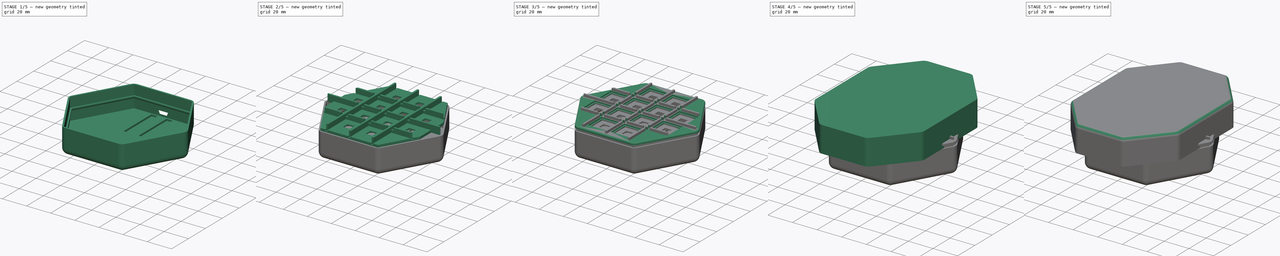
[diagram: build sequence overview — one tinted view per stage of 5, left to right]
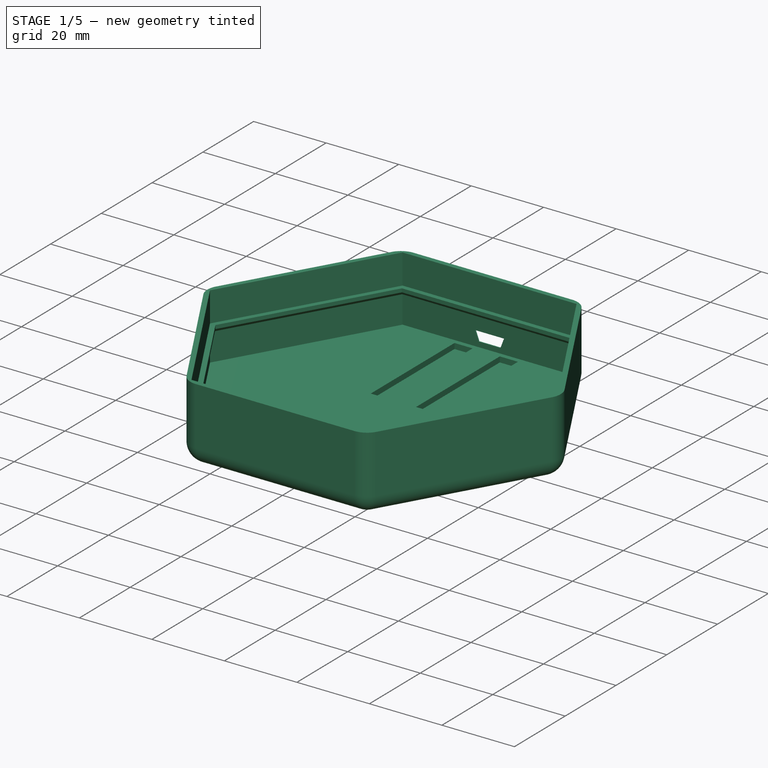
[diagram: stage 1 of 5 — iso view after this stage's code; geometry added in this stage tinted green]
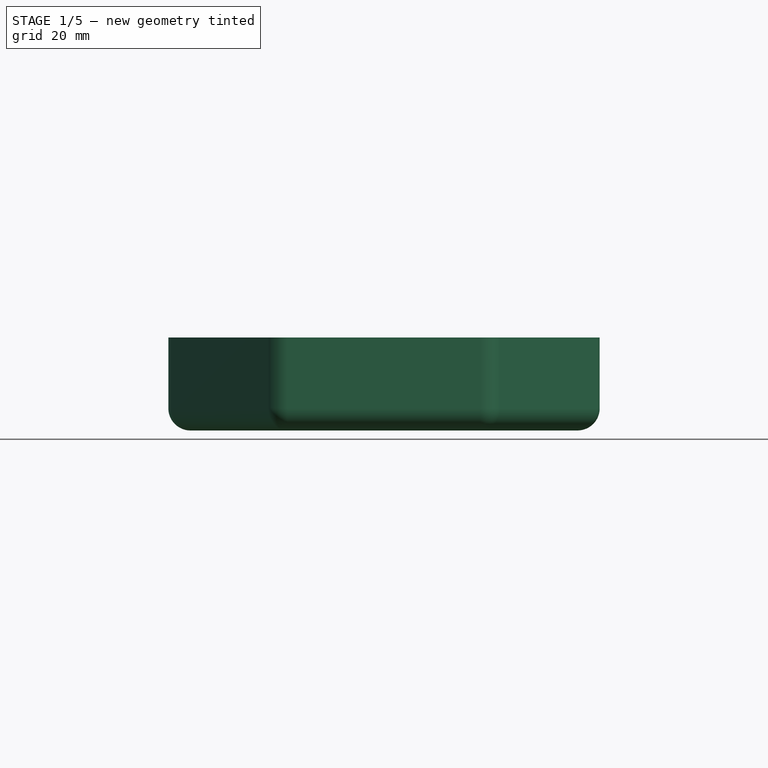
[diagram: stage 1 of 5 — front view after this stage's code; geometry added in this stage tinted green]
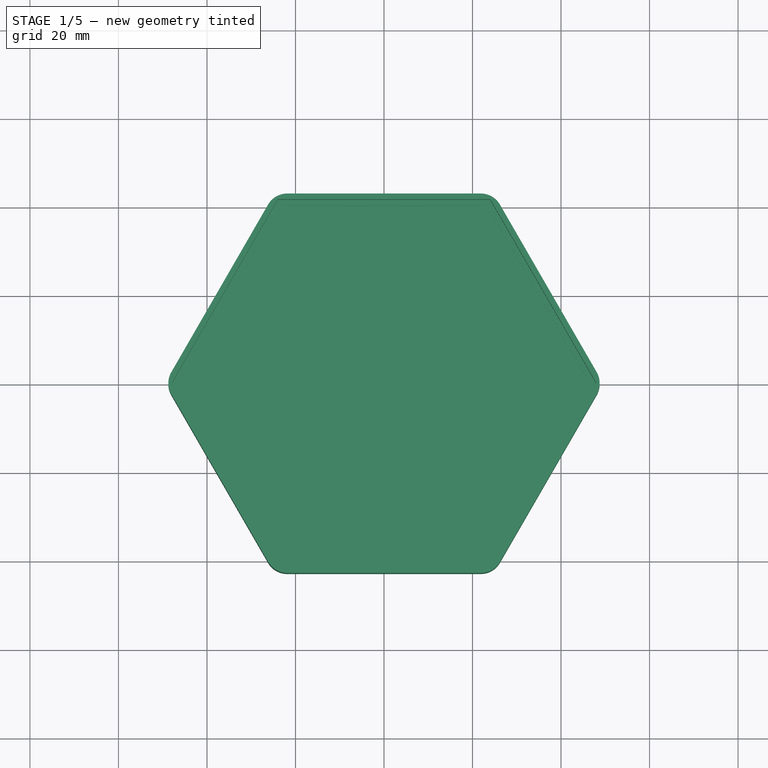
[diagram: stage 1 of 5 — top view after this stage's code; geometry added in this stage tinted green]
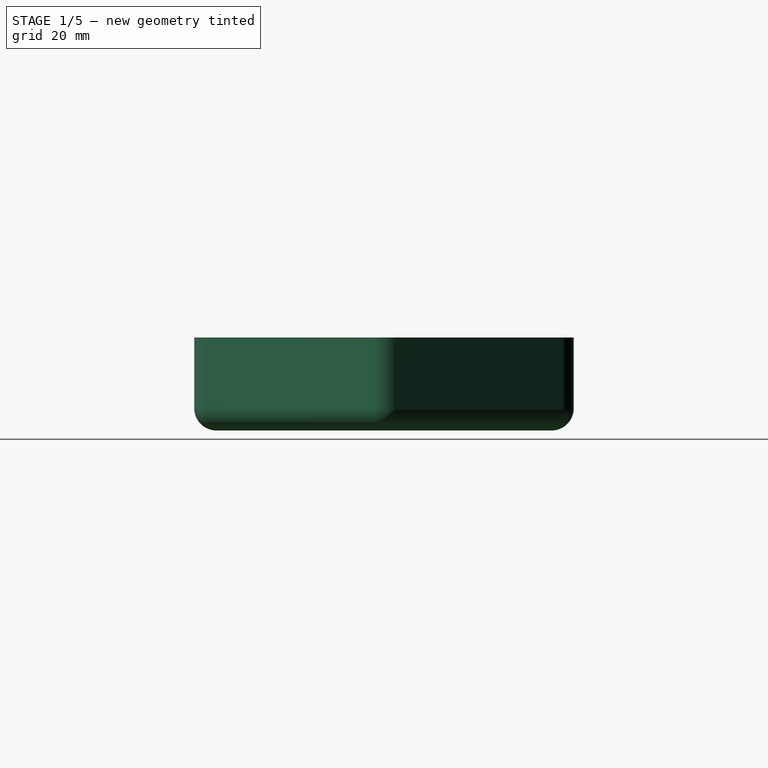
[diagram: stage 1 of 5 — right view after this stage's code; geometry added in this stage tinted green]
FCSTD DOCUMENT  (FreeCAD 0.19R22894 (Git))
Label: case
License: All rights reserved
LicenseURL: http://en.wikipedia.org/wiki/All_rights_reserved
objects: Sketcher::SketchObject×30, PartDesign::Pocket×21, PartDesign::Pad×8, PartDesign::Fillet×8, PartDesign::Body×6, PartDesign::Chamfer×3, PartDesign::Mirrored×2, PartDesign::PolarPattern×2, Spreadsheet::Sheet×1
note: 120 computed .brp shape members not serialized (recipe doc carries the construction recipe); baked Part::Feature solids carry a one-line shape summary decoded from their .brp

FEATURE [Sketcher::SketchObject] Sketch019
  MapMode = 5
  Support = -> [XY_Plane004]
  expr: Constraints[19] = (<<v>>.key_size + <<v>>.key_spacing + <<v>>.key_spacing) * 4 + <<v>>.plate_lip_width * 2
  sketch-geometry (7):
    g0: LineSegment StartX=24.75 StartY=-42.8683 StartZ=0 EndX=49.5 EndY=1.06581e-11 EndZ=0
    g1: LineSegment StartX=49.5 StartY=1.06581e-11 StartZ=0 EndX=24.75 EndY=42.8683 EndZ=0
    g2: LineSegment StartX=24.75 StartY=42.8683 StartZ=0 EndX=-24.75 EndY=42.8683 EndZ=0
    g3: LineSegment StartX=-24.75 StartY=42.8683 StartZ=0 EndX=-49.5 EndY=1.00258e-11 EndZ=0
    g4: LineSegment StartX=-49.5 StartY=1.00258e-11 StartZ=0 EndX=-24.75 EndY=-42.8683 EndZ=0
    g5: LineSegment StartX=-24.75 StartY=-42.8683 StartZ=0 EndX=24.75 EndY=-42.8683 EndZ=0
    g6: Circle [constr] CenterX=0 CenterY=0 CenterZ=0 NormalX=0 NormalY=0 NormalZ=1 AngleXU=0 Radius=49.5
  constraints (16):
    c: Coincident(g0,g1)
    c: Coincident(g1,g2)
    c: Coincident(g2,g3)
    c: Coincident(g3,g4)
    c: Coincident(g4,g5)
    c: Coincident(g5,g0)
    c: Equal(g0, g1-g5) x5
    c: PointOnObject(g0,g6)
    c: PointOnObject(g1,g6)
    c: PointOnObject(g2,g6)
    c: PointOnObject(g3,g6)
    c: PointOnObject(g4,g6)
    c: PointOnObject(g5,g6)
    c: Horizontal(g2)
    c: Coincident(g6,g-1)
    c: DistanceX(g3,g0) = 99
FEATURE [PartDesign::Pad] Pad005  label="0001 - base"
  AllowMultiFace = false
  Direction = (1,1,1)
  Length = 21
  Length2 = 100
  Profile = -> Sketch019
  Reversed = true
  Type = 0
  expr: Length = <<v>>.case_height
FEATURE [PartDesign::Fillet] Fillet006  label="0002 - fillet edges"
  Base = -> Pad005 [Edge2,Edge1,Edge5,Edge8,Edge11,Edge14]
  BaseFeature = -> Pad005
  Radius = 5
  SupportTransform = false
  expr: Radius = <<v>>.plate_fillet_radius
FEATURE [PartDesign::Fillet] Fillet007  label="0003 - fillet base"
  Base = -> Fillet006 [Face5]
  BaseFeature = -> Fillet006
  Radius = 5
  SupportTransform = false
FEATURE [Sketcher::SketchObject] Sketch020
  MapMode = 5
  Support = -> [Fillet007]
  expr: Constraints[19] = (<<v>>.key_size + <<v>>.key_spacing + <<v>>.key_spacing) * 4
  sketch-geometry (7):
    g0: LineSegment StartX=24 StartY=-41.5692 StartZ=0 EndX=48 EndY=4.974e-13 EndZ=0
    g1: LineSegment StartX=48 StartY=4.974e-13 StartZ=0 EndX=24 EndY=41.5692 EndZ=0
    g2: LineSegment StartX=24 StartY=41.5692 StartZ=0 EndX=-24 EndY=41.5692 EndZ=0
    g3: LineSegment StartX=-24 StartY=41.5692 StartZ=0 EndX=-48 EndY=9.592e-13 EndZ=0
    g4: LineSegment StartX=-48 StartY=9.592e-13 StartZ=0 EndX=-24 EndY=-41.5692 EndZ=0
    g5: LineSegment StartX=-24 StartY=-41.5692 StartZ=0 EndX=24 EndY=-41.5692 EndZ=0
    g6: Circle [constr] CenterX=0 CenterY=0 CenterZ=0 NormalX=0 NormalY=0 NormalZ=1 AngleXU=0 Radius=48
  constraints (16):
    c: Coincident(g0,g1)
    c: Coincident(g1,g2)
    c: Coincident(g2,g3)
    c: Coincident(g3,g4)
    c: Coincident(g4,g5)
    c: Coincident(g5,g0)
    c: Equal(g0, g1-g5) x5
    c: PointOnObject(g0,g6)
    c: PointOnObject(g1,g6)
    c: PointOnObject(g2,g6)
    c: PointOnObject(g3,g6)
    c: PointOnObject(g4,g6)
    c: PointOnObject(g5,g6)
    c: Horizontal(g2)
    c: Coincident(g6,g-1)
    c: DistanceX(g3,g0) = 96
FEATURE [PartDesign::Pocket] Pocket013  label="0004 - pocket inner channel"
  AllowMultiFace = false
  BaseFeature = -> Fillet007
  Length = 18
  Length2 = 100
  Profile = -> Sketch020
  Type = 0
  expr: Length = <<v>>.case_pocket_depth
FEATURE [PartDesign::Body] Body003  label="Light Shelf"
  Group = -> [Sketch014,Sketch015,Pad004,Pocket009,Sketch016,Pocket010,PolarPattern001,Sketch017,Pocket011,Sketch018,Pocket012,Sketch026,Pocket018]
  Origin = -> Origin003
  Placement = pos=(0,0,-8) rot=(0,0,1;0rad)
  Tip = -> Pocket018
FEATURE [Sketcher::SketchObject] Sketch027
  MapMode = 5
  Placement = pos=(0,41.5692,0) rot=(1,0,0;1.5708rad)
  Support = -> [Pocket013]
  expr: Constraints[20] = <<v>>.case_pocket_depth - 4
  sketch-geometry (7):
    g0: LineSegment StartX=-4 StartY=-14 StartZ=0 EndX=-3 EndY=-16.6 EndZ=0
    g1: LineSegment StartX=-3 StartY=-16.6 StartZ=0 EndX=3 EndY=-16.6 EndZ=0
    g2: LineSegment StartX=3 StartY=-16.6 StartZ=0 EndX=4 EndY=-14 EndZ=0
    g3: LineSegment StartX=4 StartY=-14 StartZ=0 EndX=-4 EndY=-14 EndZ=0
    g4: LineSegment [constr] StartX=-4 StartY=-14 StartZ=0 EndX=0 EndY=-15.6 EndZ=0
    g5: LineSegment [constr] StartX=0 StartY=-15.6 StartZ=0 EndX=4 EndY=-14 EndZ=0
    g6: LineSegment [constr] StartX=0 StartY=-15.6 StartZ=0 EndX=0 EndY=-16.6 EndZ=0
  constraints (21):
    c: Coincident(g1,g0)
    c: Horizontal(g1)
    c: Coincident(g2,g1)
    c: Coincident(g3,g2)
    c: Coincident(g3,g0)
    c: Equal(g0,g2)
    c: DistanceX(g3,g3) = 8
    c: DistanceX(g1,g1) = 6
    c: DistanceY(g0,g0) = 2.6
    c: Coincident(g4,g0)
    c: Coincident(g5,g4)
    c: Coincident(g5,g2)
    c: PointOnObject(g4,g-2)
    c: Equal(g5,g4)
    c: Coincident(g6,g4)
    c: PointOnObject(g6,g1)
    c: Vertical(g6)
    c: DistanceY(g6,g6) = 1
    c: Equal(g2,g0)
    c: Horizontal(g3)
    c: DistanceY(g2,g-1) = 14
FEATURE [PartDesign::Pocket] Pocket019  label="0005 - cutout microusb"
  BaseFeature = -> Pocket013
  Length = 5
  Length2 = 100
  Profile = -> Sketch027
  Type = 1
FEATURE [PartDesign::Chamfer] Chamfer001  label="0006 - chamfer usb port"
  Angle = 45
  Base = -> Pocket019 [Edge80,Edge52,Edge51,Edge50,Edge81,Edge79]
  BaseFeature = -> Pocket019
  ChamferType = 0
  FlipDirection = false
  Size = 1
  Size2 = 1
  SupportTransform = false
FEATURE [Sketcher::SketchObject] Sketch028
  AttachmentOffset = pos=(0,0,7.75) rot=(0,0,1;0rad)
  MapMode = 5
  Placement = pos=(0,0,-10.25) rot=(0,0,1;0rad)
  Support = -> [Chamfer001]
  expr: Constraints[19] = (<<v>>.key_size + <<v>>.key_spacing + <<v>>.key_spacing) * 4 + <<v>>.plate_lip_width * 2 - 2
  sketch-geometry (14):
    g0: LineSegment StartX=24.25 StartY=-42.0022 StartZ=0 EndX=48.5 EndY=7.1e-15 EndZ=0
    g1: LineSegment StartX=48.5 StartY=7.1e-15 StartZ=0 EndX=24.25 EndY=42.0022 EndZ=0
    g2: LineSegment StartX=24.25 StartY=42.0022 StartZ=0 EndX=-24.25 EndY=42.0022 EndZ=0
    g3: LineSegment StartX=-24.25 StartY=42.0022 StartZ=0 EndX=-48.5 EndY=0 EndZ=0
    g4: LineSegment StartX=-48.5 StartY=0 StartZ=0 EndX=-24.25 EndY=-42.0022 EndZ=0
    g5: LineSegment StartX=-24.25 StartY=-42.0022 StartZ=0 EndX=24.25 EndY=-42.0022 EndZ=0
    g6: Circle [constr] CenterX=0 CenterY=0 CenterZ=0 NormalX=0 NormalY=0 NormalZ=1 AngleXU=0 Radius=48.5
    g7: LineSegment StartX=46.5 StartY=0 StartZ=0 EndX=23.25 EndY=40.2702 EndZ=0
    g8: LineSegment StartX=23.25 StartY=40.2702 StartZ=0 EndX=-23.25 EndY=40.2702 EndZ=0
    g9: LineSegment StartX=-23.25 StartY=40.2702 StartZ=0 EndX=-46.5 EndY=0 EndZ=0
    g10: LineSegment StartX=-46.5 StartY=0 StartZ=0 EndX=-23.25 EndY=-40.2702 EndZ=0
    g11: LineSegment StartX=-23.25 StartY=-40.2702 StartZ=0 EndX=23.25 EndY=-40.2702 EndZ=0
    g12: LineSegment StartX=23.25 StartY=-40.2702 StartZ=0 EndX=46.5 EndY=0 EndZ=0
    g13: Circle [constr] CenterX=0 CenterY=0 CenterZ=0 NormalX=0 NormalY=0 NormalZ=1 AngleXU=0 Radius=46.5
  constraints (32):
    c: Coincident(g0,g1)
    c: Coincident(g1,g2)
    c: Coincident(g2,g3)
    c: Coincident(g3,g4)
    c: Coincident(g4,g5)
    c: Coincident(g5,g0)
    c: Equal(g0, g1-g5) x5
    c: PointOnObject(g0,g6)
    c: PointOnObject(g1,g6)
    c: PointOnObject(g2,g6)
    c: PointOnObject(g3,g6)
    c: PointOnObject(g4,g6)
    c: PointOnObject(g5,g6)
    c: Coincident(g6,g-1)
    c: Horizontal(g2)
    c: DistanceX(g3,g0) = 97
    c: Coincident(g7,g8)
    c: Coincident(g8,g9)
    c: Coincident(g9,g10)
    c: Coincident(g10,g11)
    c: Coincident(g11,g12)
    c: Coincident(g12,g7)
    c: Equal(g7, g8-g12) x5
    c: PointOnObject(g7,g13)
    c: PointOnObject(g8,g13)
    c: PointOnObject(g9,g13)
    c: PointOnObject(g10,g13)
    c: PointOnObject(g11,g13)
    c: PointOnObject(g12,g13)
    c: PointOnObject(g12,g-1)
    c: Coincident(g13,g-1)
    c: Distance(g8,g2) = 2
FEATURE [PartDesign::Pad] Pad007  label="0007 - lip"
  BaseFeature = -> Chamfer001
  Direction = (1,1,1)
  Length = 2
  Length2 = 100
  Profile = -> Sketch028
  Type = 0
FEATURE [PartDesign::Chamfer] Chamfer002  label="0008 - chamfer lip"
  Angle = 45
  Base = -> Pad007 [Edge127,Edge128,Edge125,Edge123,Edge124,Edge126]
  BaseFeature = -> Pad007
  ChamferType = 0
  FlipDirection = false
  Size = 1
  Size2 = 1
  SupportTransform = false
FEATURE [Sketcher::SketchObject] Sketch029
  ExternalGeometry = -> [Chamfer002]
  MapMode = 5
  Placement = pos=(0,0,-18) rot=(0,0,1;0rad)
  Support = -> [Chamfer002]
  sketch-geometry (10):
    g0: LineSegment StartX=-8.75 StartY=40.2702 StartZ=0 EndX=-3.75 EndY=40.2702 EndZ=0
    g1: LineSegment StartX=-3.75 StartY=40.2702 StartZ=0 EndX=-3.75 EndY=7.27018 EndZ=0
    g2: LineSegment StartX=-3.75 StartY=7.27018 StartZ=0 EndX=-8.75 EndY=7.27018 EndZ=0
    g3: LineSegment StartX=-8.75 StartY=7.27018 StartZ=0 EndX=-8.75 EndY=40.2702 EndZ=0
    g4: LineSegment StartX=3.75 StartY=40.2702 StartZ=0 EndX=8.75 EndY=40.2702 EndZ=0
    g5: LineSegment StartX=8.75 StartY=40.2702 StartZ=0 EndX=8.75 EndY=7.27018 EndZ=0
    g6: LineSegment StartX=8.75 StartY=7.27018 StartZ=0 EndX=3.75 EndY=7.27018 EndZ=0
    g7: LineSegment StartX=3.75 StartY=7.27018 StartZ=0 EndX=3.75 EndY=40.2702 EndZ=0
    g8: LineSegment [constr] StartX=-3.75 StartY=7.27018 StartZ=0 EndX=0 EndY=7.27018 EndZ=0
    g9: LineSegment [constr] StartX=3.75 StartY=7.27018 StartZ=0 EndX=0 EndY=7.27018 EndZ=0
  constraints (30):
    c: Coincident(g0,g1)
    c: Coincident(g1,g2)
    c: Coincident(g2,g3)
    c: Coincident(g3,g0)
    c: Horizontal(g0)
    c: Horizontal(g2)
    c: Vertical(g1)
    c: Vertical(g3)
    c: Coincident(g4,g5)
    c: Coincident(g5,g6)
    c: Coincident(g6,g7)
    c: Coincident(g7,g4)
    c: Horizontal(g4)
    c: Horizontal(g6)
    c: Vertical(g5)
    c: Vertical(g7)
    c: Equal(g0,g4)
    c: DistanceX(g4,g4) = 5
    c: PointOnObject(g0,g-3)
    c: PointOnObject(g4,g-3)
    c: DistanceX(g1,g6) = 7.5
    c: Equal(g5,g3)
    c: Coincident(g8,g1)
    c: PointOnObject(g8,g-2)
    c: Horizontal(g8)
    c: Coincident(g9,g6)
    c: Coincident(g9,g8)
    c: Equal(g9,g8)
    c: Equal(g3,g5)
    c: DistanceY(g3,g3) = 33
FEATURE [PartDesign::Pocket] Pocket020
  BaseFeature = -> Chamfer002
  Length = 1.5
  Length2 = 100
  Profile = -> Sketch029
  Type = 0
FEATURE [PartDesign::Body] Body004  label="Case"
  Group = -> [Sketch019,Pad005,Fillet006,Fillet007,Sketch020,Pocket013,Sketch027,Pocket019,Chamfer001,Sketch028,Pad007,Chamfer002,Sketch029,Pocket020]
  Origin = -> Origin004
  Tip = -> Pocket020
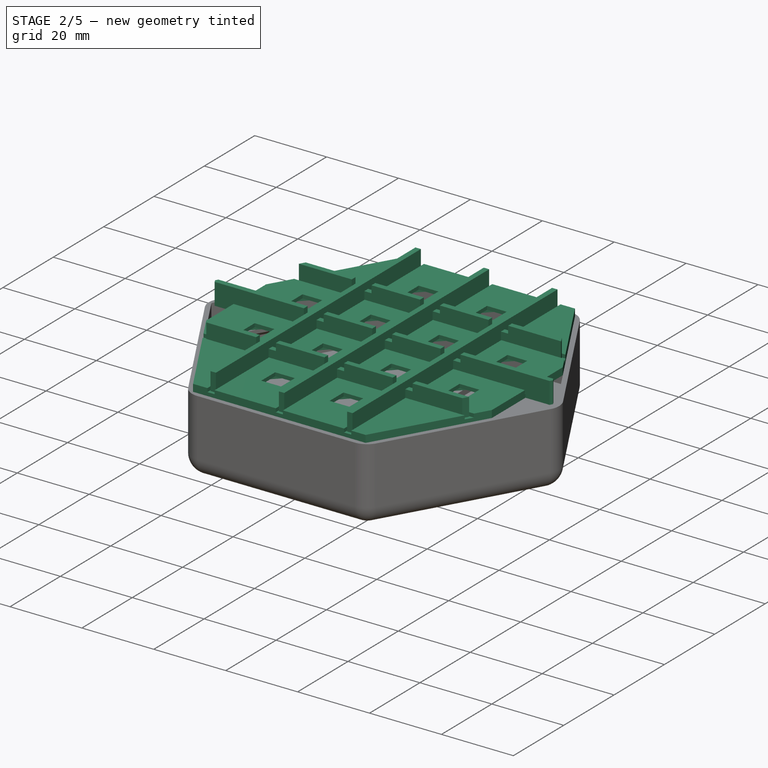
[diagram: stage 2 of 5 — iso view after this stage's code; geometry added in this stage tinted green]
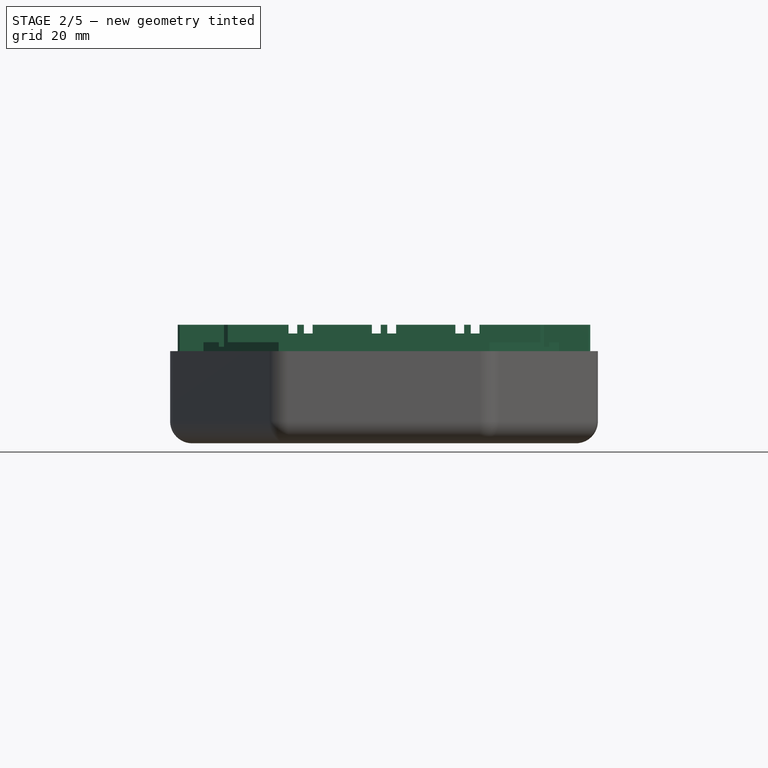
[diagram: stage 2 of 5 — front view after this stage's code; geometry added in this stage tinted green]
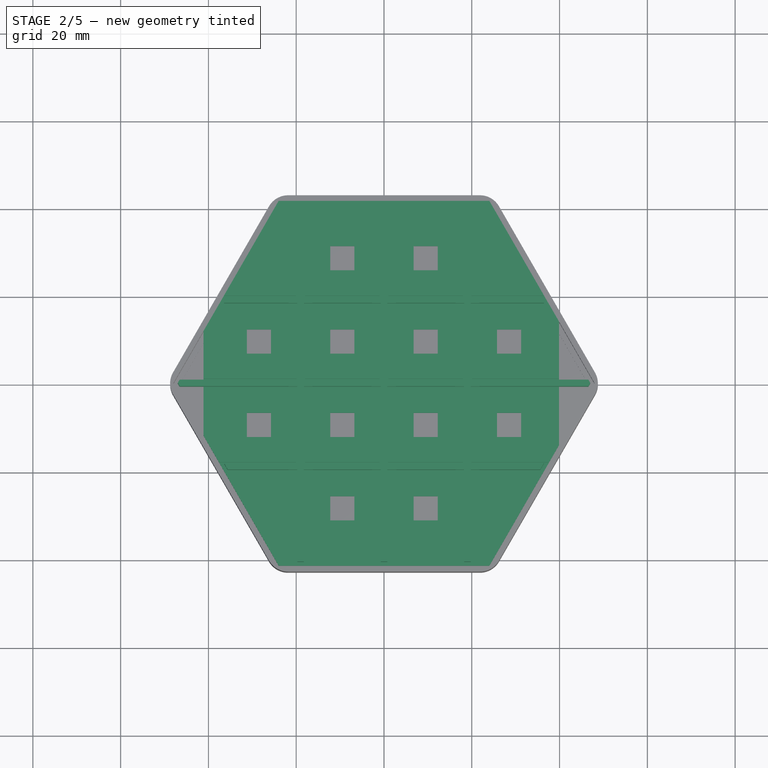
[diagram: stage 2 of 5 — top view after this stage's code; geometry added in this stage tinted green]
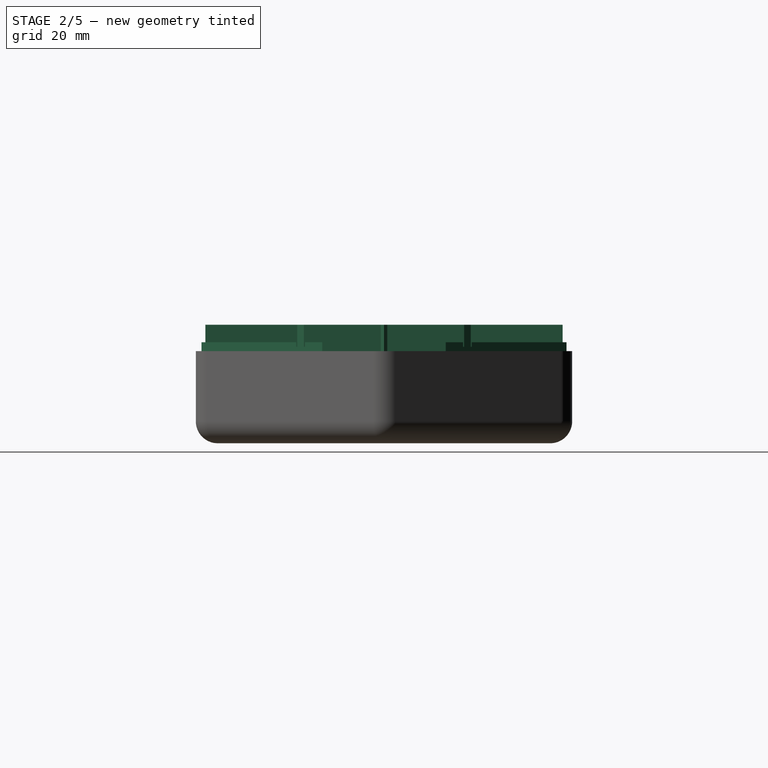
[diagram: stage 2 of 5 — right view after this stage's code; geometry added in this stage tinted green]
FEATURE [Sketcher::SketchObject] Sketch015
  MapMode = 5
  Support = -> [XY_Plane003]
  expr: Constraints[18] = (<<v>>.key_size + <<v>>.key_spacing + <<v>>.key_spacing) * 4
  sketch-geometry (7):
    g0: LineSegment StartX=24 StartY=-41.5692 StartZ=0 EndX=48 EndY=0 EndZ=0
    g1: LineSegment StartX=48 StartY=0 StartZ=0 EndX=24 EndY=41.5692 EndZ=0
    g2: LineSegment StartX=24 StartY=41.5692 StartZ=0 EndX=-24 EndY=41.5692 EndZ=0
    g3: LineSegment StartX=-24 StartY=41.5692 StartZ=0 EndX=-48 EndY=0 EndZ=0
    g4: LineSegment StartX=-48 StartY=0 StartZ=0 EndX=-24 EndY=-41.5692 EndZ=0
    g5: LineSegment StartX=-24 StartY=-41.5692 StartZ=0 EndX=24 EndY=-41.5692 EndZ=0
    g6: Circle [constr] CenterX=0 CenterY=0 CenterZ=0 NormalX=0 NormalY=0 NormalZ=1 AngleXU=0 Radius=48
  constraints (16):
    c: Coincident(g0,g1)
    c: Coincident(g1,g2)
    c: Coincident(g2,g3)
    c: Coincident(g3,g4)
    c: Coincident(g4,g5)
    c: Coincident(g5,g0)
    c: Equal(g0, g1-g5) x5
    c: PointOnObject(g0,g6)
    c: PointOnObject(g1,g6)
    c: PointOnObject(g2,g6)
    c: PointOnObject(g3,g6)
    c: PointOnObject(g4,g6)
    c: PointOnObject(g5,g6)
    c: Horizontal(g2)
    c: DistanceX(g3,g0) = 96
    c: Coincident(g6,g-1)
FEATURE [PartDesign::Pad] Pad004  label="0001 - pad base"
  AllowMultiFace = false
  Direction = (1,1,1)
  Length = 2
  Length2 = 100
  Profile = -> Sketch015
  Type = 0
  expr: Length = <<v>>.led_height + <<v>>.led_plate_height
FEATURE [Sketcher::SketchObject] Sketch014
  MapMode = 5
  Placement = pos=(0,0,2) rot=(0,0,1;0rad)
  Support = -> [Pad004]
  expr: Constraints[29] = <<v>>.led_size
  expr: Constraints[53] = <<v>>.center_to_center_spacing
  expr: Constraints[54] = <<v>>.center_to_center_spacing
  expr: Constraints[55] = <<v>>.center_to_center_spacing / 2
  expr: Constraints[56] = <<v>>.center_to_center_spacing / 2
  sketch-geometry (21):
    g0: LineSegment StartX=-12.25 StartY=12.25 StartZ=0 EndX=-6.75 EndY=12.25 EndZ=0
    g1: LineSegment StartX=-6.75 StartY=12.25 StartZ=0 EndX=-6.75 EndY=6.75 EndZ=0
    g2: LineSegment StartX=-6.75 StartY=6.75 StartZ=0 EndX=-12.25 EndY=6.75 EndZ=0
    g3: LineSegment StartX=-12.25 StartY=6.75 StartZ=0 EndX=-12.25 EndY=12.25 EndZ=0
    g4: LineSegment StartX=-31.25 StartY=12.25 StartZ=0 EndX=-25.75 EndY=12.25 EndZ=0
    g5: LineSegment StartX=-25.75 StartY=12.25 StartZ=0 EndX=-25.75 EndY=6.75 EndZ=0
    g6: LineSegment StartX=-25.75 StartY=6.75 StartZ=0 EndX=-31.25 EndY=6.75 EndZ=0
    g7: LineSegment StartX=-31.25 StartY=6.75 StartZ=0 EndX=-31.25 EndY=12.25 EndZ=0
    g8: LineSegment StartX=-12.25 StartY=25.75 StartZ=0 EndX=-6.75 EndY=25.75 EndZ=0
    g9: LineSegment StartX=-6.75 StartY=25.75 StartZ=0 EndX=-6.75 EndY=31.25 EndZ=0
    g10: LineSegment StartX=-6.75 StartY=31.25 StartZ=0 EndX=-12.25 EndY=31.25 EndZ=0
    g11: LineSegment StartX=-12.25 StartY=31.25 StartZ=0 EndX=-12.25 EndY=25.75 EndZ=0
    g12: LineSegment [constr] StartX=-12.25 StartY=25.75 StartZ=0 EndX=-9.5 EndY=28.5 EndZ=0
    g13: LineSegment [constr] StartX=-9.5 StartY=28.5 StartZ=0 EndX=-6.75 EndY=25.75 EndZ=0
    g14: LineSegment [constr] StartX=-9.5 StartY=28.5 StartZ=0 EndX=-12.25 EndY=31.25 EndZ=0
    g15: LineSegment [constr] StartX=-6.75 StartY=12.25 StartZ=0 EndX=-9.5 EndY=9.5 EndZ=0
    g16: LineSegment [constr] StartX=-9.5 StartY=9.5 StartZ=0 EndX=-12.25 EndY=12.25 EndZ=0
    g17: LineSegment [constr] StartX=-9.5 StartY=9.5 StartZ=0 EndX=-6.75 EndY=6.75 EndZ=0
    g18: LineSegment [constr] StartX=-28.5 StartY=9.5 StartZ=0 EndX=-31.25 EndY=12.25 EndZ=0
    g19: LineSegment [constr] StartX=-28.5 StartY=9.5 StartZ=0 EndX=-25.75 EndY=12.25 EndZ=0
    g20: LineSegment [constr] StartX=-28.5 StartY=9.5 StartZ=0 EndX=-25.75 EndY=6.75 EndZ=0
  constraints (57):
    c: Coincident(g0,g1)
    c: Coincident(g1,g2)
    c: Coincident(g2,g3)
    c: Coincident(g3,g0)
    c: Horizontal(g0)
    c: Horizontal(g2)
    c: Vertical(g1)
    c: Vertical(g3)
    c: Coincident(g4,g5)
    c: Coincident(g5,g6)
    c: Coincident(g6,g7)
    c: Coincident(g7,g4)
    c: Horizontal(g4)
    c: Horizontal(g6)
    c: Vertical(g5)
    c: Vertical(g7)
    c: Coincident(g8,g9)
    c: Coincident(g9,g10)
    c: Coincident(g10,g11)
    c: Coincident(g11,g8)
    c: Horizontal(g8)
    c: Horizontal(g10)
    c: Vertical(g9)
    c: Vertical(g11)
    c: Equal(g10,g11)
    c: Equal(g11,g0)
    c: Equal(g0,g3)
    c: Equal(g3,g5)
    c: Equal(g5,g4)
    c: DistanceX(g8,g8) = 5.5
    c: Vertical(g0,g9)
    c: Horizontal(g0,g4)
    c: Coincident(g20,g19)
    c: Coincident(g20,g18)
    c: Coincident(g14,g12)
    c: Coincident(g14,g13)
    c: Coincident(g17,g16)
    c: Coincident(g17,g15)
    c: Coincident(g18,g4)
    c: Coincident(g19,g4)
    c: Coincident(g5,g20)
    c: Equal(g18,g19)
    c: Equal(g19,g20)
    c: Coincident(g13,g8)
    c: Coincident(g12,g8)
    c: Coincident(g14,g10)
    c: Equal(g14,g12)
    c: Equal(g12,g13)
    c: Coincident(g17,g1)
    c: Coincident(g15,g0)
    c: Coincident(g16,g0)
    c: Equal(g15,g16)
    c: Equal(g16,g17)
    c: DistanceY(g15,g12) = 19
    c: DistanceX(g18,g15) = 19
    c: DistanceX(g15,g-1) = 9.5
    c: DistanceY(g-1,g15) = 9.5
FEATURE [PartDesign::Pocket] Pocket009  label="0002 - cut holes (1/4)"
  AllowMultiFace = false
  BaseFeature = -> Pad004
  Length = 5
  Length2 = 100
  Profile = -> Sketch014
  Type = 1
FEATURE [Sketcher::SketchObject] Sketch016
  MapMode = 5
  Placement = pos=(0,0,0) rot=(1,0,0;3.14159rad)
  Support = -> [Pocket009]
  expr: Constraints[73] = <<v>>.center_to_center_spacing
  expr: Constraints[75] = <<v>>.center_to_center_spacing
  expr: Constraints[76] = <<v>>.center_to_center_spacing / 2
  expr: Constraints[77] = <<v>>.center_to_center_spacing / 2
  expr: Constraints[78] = <<v>>.led_plate_diameter / 2
  sketch-geometry (27):
    g0: LineSegment StartX=-26.5866 StartY=-14.1194 StartZ=0 EndX=-23.8806 EndY=-11.4134 EndZ=0
    g1: LineSegment StartX=-23.8806 StartY=-11.4134 StartZ=0 EndX=-23.8806 EndY=-7.58658 EndZ=0
    g2: LineSegment StartX=-23.8806 StartY=-7.58658 StartZ=0 EndX=-26.5866 EndY=-4.8806 EndZ=0
    g3: LineSegment StartX=-26.5866 StartY=-4.8806 StartZ=0 EndX=-30.4134 EndY=-4.8806 EndZ=0
    g4: LineSegment StartX=-30.4134 StartY=-4.8806 StartZ=0 EndX=-33.1194 EndY=-7.58658 EndZ=0
    g5: LineSegment StartX=-33.1194 StartY=-7.58658 StartZ=0 EndX=-33.1194 EndY=-11.4134 EndZ=0
    g6: LineSegment StartX=-33.1194 StartY=-11.4134 StartZ=0 EndX=-30.4134 EndY=-14.1194 EndZ=0
    g7: LineSegment StartX=-30.4134 StartY=-14.1194 StartZ=0 EndX=-26.5866 EndY=-14.1194 EndZ=0
    g8: Circle [constr] CenterX=-28.5 CenterY=-9.5 CenterZ=0 NormalX=0 NormalY=0 NormalZ=1 AngleXU=0 Radius=5
    g9: LineSegment StartX=-4.8806 StartY=-11.4134 StartZ=0 EndX=-4.8806 EndY=-7.58658 EndZ=0
    g10: LineSegment StartX=-4.8806 StartY=-7.58658 StartZ=0 EndX=-7.58658 EndY=-4.8806 EndZ=0
    g11: LineSegment StartX=-7.58658 StartY=-4.8806 StartZ=0 EndX=-11.4134 EndY=-4.8806 EndZ=0
    g12: LineSegment StartX=-11.4134 StartY=-4.8806 StartZ=0 EndX=-14.1194 EndY=-7.58658 EndZ=0
    g13: LineSegment StartX=-14.1194 StartY=-7.58658 StartZ=0 EndX=-14.1194 EndY=-11.4134 EndZ=0
    g14: LineSegment StartX=-14.1194 StartY=-11.4134 StartZ=0 EndX=-11.4134 EndY=-14.1194 EndZ=0
    g15: LineSegment StartX=-11.4134 StartY=-14.1194 StartZ=0 EndX=-7.58658 EndY=-14.1194 EndZ=0
    g16: LineSegment StartX=-7.58658 StartY=-14.1194 StartZ=0 EndX=-4.8806 EndY=-11.4134 EndZ=0
    g17: Circle [constr] CenterX=-9.5 CenterY=-9.5 CenterZ=0 NormalX=0 NormalY=0 NormalZ=1 AngleXU=0 Radius=5
    g18: LineSegment StartX=-7.58658 StartY=-33.1194 StartZ=0 EndX=-4.8806 EndY=-30.4134 EndZ=0
    g19: LineSegment StartX=-4.8806 StartY=-30.4134 StartZ=0 EndX=-4.8806 EndY=-26.5866 EndZ=0
    g20: LineSegment StartX=-4.8806 StartY=-26.5866 StartZ=0 EndX=-7.58658 EndY=-23.8806 EndZ=0
    g21: LineSegment StartX=-7.58658 StartY=-23.8806 StartZ=0 EndX=-11.4134 EndY=-23.8806 EndZ=0
    g22: LineSegment StartX=-11.4134 StartY=-23.8806 StartZ=0 EndX=-14.1194 EndY=-26.5866 EndZ=0
    g23: LineSegment StartX=-14.1194 StartY=-26.5866 StartZ=0 EndX=-14.1194 EndY=-30.4134 EndZ=0
    g24: LineSegment StartX=-14.1194 StartY=-30.4134 StartZ=0 EndX=-11.4134 EndY=-33.1194 EndZ=0
    g25: LineSegment StartX=-11.4134 StartY=-33.1194 StartZ=0 EndX=-7.58658 EndY=-33.1194 EndZ=0
    g26: Circle [constr] CenterX=-9.5 CenterY=-28.5 CenterZ=0 NormalX=0 NormalY=0 NormalZ=1 AngleXU=0 Radius=5
  constraints (63):
    c: Coincident(g0,g1)
    c: Coincident(g1,g2)
    c: Coincident(g2,g3)
    c: Coincident(g3,g4)
    c: Coincident(g4,g5)
    c: Coincident(g5,g6)
    c: Coincident(g6,g7)
    c: Coincident(g7,g0)
    c: Equal(g0, g1-g7) x7
    c: PointOnObject(g0,g8)
    c: PointOnObject(g1,g8)
    c: PointOnObject(g2,g8)
    c: PointOnObject(g3,g8)
    c: PointOnObject(g4,g8)
    c: PointOnObject(g5,g8)
    c: PointOnObject(g6,g8)
    c: PointOnObject(g7,g8)
    c: Coincident(g9,g10)
    c: Coincident(g10,g11)
    c: Coincident(g11,g12)
    c: Coincident(g12,g13)
    c: Coincident(g13,g14)
    c: Coincident(g14,g15)
    c: Coincident(g15,g16)
    c: Coincident(g16,g9)
    c: Equal(g9, g10-g16) x7
    c: PointOnObject(g9,g17)
    c: PointOnObject(g10,g17)
    c: PointOnObject(g11,g17)
    c: PointOnObject(g12,g17)
    c: PointOnObject(g13,g17)
    c: PointOnObject(g14,g17)
    c: PointOnObject(g15,g17)
    c: PointOnObject(g16,g17)
    c: Coincident(g18,g19)
    c: Coincident(g19,g20)
    c: Coincident(g20,g21)
    c: Coincident(g21,g22)
    c: Coincident(g22,g23)
    c: Coincident(g23,g24)
    c: Coincident(g24,g25)
    c: Coincident(g25,g18)
    c: Equal(g18, g19-g25) x7
    c: PointOnObject(g18,g26)
    c: PointOnObject(g19,g26)
    c: PointOnObject(g20,g26)
    c: PointOnObject(g21,g26)
    c: PointOnObject(g22,g26)
    c: PointOnObject(g23,g26)
    c: PointOnObject(g24,g26)
    c: PointOnObject(g25,g26)
    c: Horizontal(g11)
    c: Horizontal(g3)
    c: Horizontal(g21)
    c: Vertical(g17,g26)
    c: DistanceY(g26,g17) = 19
    c: Horizontal(g8,g17)
    c: DistanceX(g8,g17) = 19
    c: DistanceX(g17,g-1) = 9.5
    c: DistanceY(g17,g-1) = 9.5
    c: Radius(g17) = 5
    c: Equal(g17,g8)
    c: Equal(g17,g26)
FEATURE [PartDesign::Pocket] Pocket010  label="0003 - recess for led plate (1/4)"
  AllowMultiFace = false
  BaseFeature = -> Pocket009
  Length = 1
  Length2 = 100
  Profile = -> Sketch016
  Type = 0
  expr: Length = <<v>>.led_plate_height
FEATURE [PartDesign::PolarPattern] PolarPattern001  label="0004 - holes (full)"
  Angle = 360
  Axis = -> Sketch016 [N_Axis]
  BaseFeature = -> Pocket010
  Occurrences = 4
  Originals = -> [Pocket010,Pocket009]
FEATURE [Sketcher::SketchObject] Sketch017
  ExternalGeometry = -> [PolarPattern001]
  MapMode = 5
  Placement = pos=(0,0,2) rot=(0,0,1;0rad)
  Support = -> [PolarPattern001]
  expr: Constraints[32] = <<v>>.led_plate_wall_thickness
  expr: Constraints[33] = <<v>>.center_to_center_spacing - <<v>>.led_plate_wall_thickness
  expr: Constraints[34] = <<v>>.center_to_center_spacing - <<v>>.led_plate_wall_thickness
  expr: Constraints[35] = <<v>>.led_plate_wall_thickness / 2
  sketch-geometry (12):
    g0: LineSegment StartX=-1 StartY=41.5692 StartZ=0 EndX=1 EndY=41.5692 EndZ=0
    g1: LineSegment StartX=1 StartY=41.5692 StartZ=0 EndX=1 EndY=-41.5692 EndZ=0
    g2: LineSegment StartX=1 StartY=-41.5692 StartZ=0 EndX=-1 EndY=-41.5692 EndZ=0
    g3: LineSegment StartX=-1 StartY=-41.5692 StartZ=0 EndX=-1 EndY=41.5692 EndZ=0
    g4: LineSegment StartX=-20 StartY=41.5692 StartZ=0 EndX=-18 EndY=41.5692 EndZ=0
    g5: LineSegment StartX=-18 StartY=41.5692 StartZ=0 EndX=-18 EndY=-41.5692 EndZ=0
    g6: LineSegment StartX=-18 StartY=-41.5692 StartZ=0 EndX=-20 EndY=-41.5692 EndZ=0
    g7: LineSegment StartX=-20 StartY=-41.5692 StartZ=0 EndX=-20 EndY=41.5692 EndZ=0
    g8: LineSegment StartX=18 StartY=41.5692 StartZ=0 EndX=20 EndY=41.5692 EndZ=0
    g9: LineSegment StartX=20 StartY=41.5692 StartZ=0 EndX=20 EndY=-41.5692 EndZ=0
    g10: LineSegment StartX=20 StartY=-41.5692 StartZ=0 EndX=18 EndY=-41.5692 EndZ=0
    g11: LineSegment StartX=18 StartY=-41.5692 StartZ=0 EndX=18 EndY=41.5692 EndZ=0
  constraints (36):
    c: Coincident(g0,g1)
    c: Coincident(g1,g2)
    c: Coincident(g2,g3)
    c: Coincident(g3,g0)
    c: Horizontal(g0)
    c: Horizontal(g2)
    c: Vertical(g1)
    c: Vertical(g3)
    c: Coincident(g4,g5)
    c: Coincident(g5,g6)
    c: Coincident(g6,g7)
    c: Coincident(g7,g4)
    c: Horizontal(g4)
    c: Horizontal(g6)
    c: Vertical(g5)
    c: Vertical(g7)
    c: Coincident(g8,g9)
    c: Coincident(g9,g10)
    c: Coincident(g10,g11)
    c: Coincident(g11,g8)
    c: Horizontal(g8)
    c: Horizontal(g10)
    c: Vertical(g9)
    c: Vertical(g11)
    c: PointOnObject(g1,g-4)
    c: PointOnObject(g9,g-4)
    c: PointOnObject(g5,g-4)
    c: PointOnObject(g4,g-3)
    c: PointOnObject(g0,g-3)
    c: PointOnObject(g8,g-3)
    c: Equal(g0,g4)
    c: Equal(g4,g8)
    c: DistanceX(g0,g0) = 2
    c: DistanceX(g4,g0) = 17
    c: DistanceX(g0,g8) = 17
    c: DistanceX(g-1,g0) = 1
FEATURE [PartDesign::Pocket] Pocket011  label="0005 - cut vertical wall slots"
  AllowMultiFace = false
  BaseFeature = -> PolarPattern001
  Length = 1
  Length2 = 100
  Profile = -> Sketch017
  Type = 0
  expr: Length = <<v>>.led_plate_wall_slot_depth
FEATURE [Sketcher::SketchObject] Sketch018
  ExternalGeometry = -> [Pocket011]
  MapMode = 5
  Placement = pos=(0,0,2) rot=(0,0,1;0rad)
  Support = -> [Pocket011]
  expr: Constraints[15] = <<v>>.led_plate_wall_thickness
  expr: Constraints[26] = <<v>>.led_plate_wall_thickness
  expr: Constraints[38] = <<v>>.led_plate_wall_thickness
  expr: Constraints[27] = <<v>>.center_to_center_spacing - <<v>>.led_plate_wall_thickness
  expr: Constraints[39] = <<v>>.center_to_center_spacing - <<v>>.led_plate_wall_thickness
  sketch-geometry (14):
    g0: LineSegment StartX=-47.4226 StartY=1 StartZ=0 EndX=-48 EndY=-2.8e-15 EndZ=0
    g1: LineSegment StartX=-48 StartY=-2.8e-15 StartZ=0 EndX=-47.4226 EndY=-1 EndZ=0
    g2: LineSegment StartX=-47.4226 StartY=-1 StartZ=0 EndX=47.4226 EndY=-1 EndZ=0
    g3: LineSegment StartX=47.4226 StartY=-1 StartZ=0 EndX=48 EndY=0 EndZ=0
    g4: LineSegment StartX=48 StartY=0 StartZ=0 EndX=47.4226 EndY=1 EndZ=0
    g5: LineSegment StartX=47.4226 StartY=1 StartZ=0 EndX=-47.4226 EndY=1 EndZ=0
    g6: LineSegment StartX=-36.453 StartY=20 StartZ=0 EndX=-37.6077 EndY=18 EndZ=0
    g7: LineSegment StartX=-37.6077 StartY=18 StartZ=0 EndX=37.6077 EndY=18 EndZ=0
    g8: LineSegment StartX=37.6077 StartY=18 StartZ=0 EndX=36.453 EndY=20 EndZ=0
    g9: LineSegment StartX=36.453 StartY=20 StartZ=0 EndX=-36.453 EndY=20 EndZ=0
    g10: LineSegment StartX=-37.6077 StartY=-18 StartZ=0 EndX=-36.453 EndY=-20 EndZ=0
    g11: LineSegment StartX=-36.453 StartY=-20 StartZ=0 EndX=36.453 EndY=-20 EndZ=0
    g12: LineSegment StartX=36.453 StartY=-20 StartZ=0 EndX=37.6077 EndY=-18 EndZ=0
    g13: LineSegment StartX=37.6077 StartY=-18 StartZ=0 EndX=-37.6077 EndY=-18 EndZ=0
  constraints (40):
    c: Coincident(g0,g1)
    c: Coincident(g1,g2)
    c: Horizontal(g2)
    c: Coincident(g2,g3)
    c: Coincident(g3,g4)
    c: Coincident(g4,g5)
    c: Coincident(g5,g0)
    c: Horizontal(g5)
    c: Equal(g4,g3)
    c: Coincident(g3,g-6)
    c: Coincident(g0,g-4)
    c: Equal(g0,g1)
    c: PointOnObject(g0,g-3)
    c: PointOnObject(g1,g-4)
    c: PointOnObject(g4,g-5)
    c: DistanceY(g2,g4) = 2
    c: Coincident(g6,g7)
    c: Horizontal(g7)
    c: Coincident(g7,g8)
    c: Coincident(g8,g9)
    c: Coincident(g9,g6)
    c: Horizontal(g9)
    c: PointOnObject(g7,g-5)
    c: PointOnObject(g8,g-5)
    c: PointOnObject(g6,g-3)
    c: PointOnObject(g6,g-3)
    c: DistanceY(g7,g8) = 2
    c: DistanceY(g0,g6) = 17
    c: Coincident(g10,g11)
    c: Horizontal(g11)
    c: Coincident(g11,g12)
    c: Coincident(g12,g13)
    c: Coincident(g13,g10)
    c: Horizontal(g13)
    c: PointOnObject(g10,g-4)
    c: PointOnObject(g10,g-4)
    c: PointOnObject(g12,g-6)
    c: PointOnObject(g11,g-6)
    c: DistanceY(g11,g12) = 2
    c: DistanceY(g10,g1) = 17
FEATURE [PartDesign::Pocket] Pocket012  label="0006 - cut horizontal wall slots"
  AllowMultiFace = false
  BaseFeature = -> Pocket011
  Length = 1
  Length2 = 100
  Profile = -> Sketch018
  Type = 0
  expr: Length = <<v>>.led_plate_wall_slot_depth
FEATURE [PartDesign::Body] Body002  label="Top Plate"
  Group = -> [Sketch010,Sketch011,Pad003,Pocket006,Sketch012,Pocket007,PolarPattern,Sketch013,Pocket008,Fillet004,Fillet005,Sketch021,Pocket014,Sketch022,Pocket015]
  Origin = -> Origin002
  Placement = pos=(0,0,-2) rot=(0,0,1;0rad)
  Tip = -> Pocket015
FEATURE [Sketcher::SketchObject] Sketch023
  MapMode = 5
  Support = -> [XY_Plane005]
  expr: Constraints[210] = <<v>>.center_to_center_spacing - <<v>>.led_plate_wall_thickness + 0.5
  expr: Constraints[208] = <<v>>.center_to_center_spacing - <<v>>.led_plate_wall_thickness + 0.5
  expr: Constraints[211] = <<v>>.center_to_center_spacing - <<v>>.led_plate_wall_thickness + 0.5
  expr: Constraints[209] = <<v>>.center_to_center_spacing - <<v>>.led_plate_wall_thickness + 0.5
  expr: Constraints[196] = <<v>>.led_plate_wall_thickness - 0.5
  expr: Constraints[19] = (<<v>>.key_spacing + <<v>>.key_spacing + <<v>>.key_size) * 4 - 2
  expr: Constraints[191] = <<v>>.led_plate_wall_thickness - 0.5
  expr: Constraints[159] = <<v>>.led_plate_wall_thickness - 0.5
  expr: Constraints[192] = <<v>>.led_plate_wall_thickness - 0.5
  sketch-geometry (73):
    g0: LineSegment [constr] StartX=23.5 StartY=-40.7032 StartZ=0 EndX=47 EndY=-7.1e-15 EndZ=0
    g1: LineSegment [constr] StartX=47 StartY=-7.1e-15 StartZ=0 EndX=23.5 EndY=40.7032 EndZ=0
    g2: LineSegment [constr] StartX=23.5 StartY=40.7032 StartZ=0 EndX=-23.5 EndY=40.7032 EndZ=0
    g3: LineSegment [constr] StartX=-23.5 StartY=40.7032 StartZ=0 EndX=-47 EndY=0 EndZ=0
    g4: LineSegment [constr] StartX=-47 StartY=0 StartZ=0 EndX=-23.5 EndY=-40.7032 EndZ=0
    g5: LineSegment [constr] StartX=-23.5 StartY=-40.7032 StartZ=0 EndX=23.5 EndY=-40.7032 EndZ=0
    g6: Circle [constr] CenterX=0 CenterY=0 CenterZ=0 NormalX=0 NormalY=0 NormalZ=1 AngleXU=0 Radius=47
    g7: LineSegment StartX=-19.75 StartY=40.7032 StartZ=0 EndX=-19.75 EndY=19.75 EndZ=0
    g8: LineSegment StartX=-19.75 StartY=19.75 StartZ=0 EndX=-35.5973 EndY=19.75 EndZ=0
    g9: LineSegment StartX=-35.5973 StartY=19.75 StartZ=0 EndX=-36.4634 EndY=18.25 EndZ=0
    g10: LineSegment StartX=-36.4634 StartY=18.25 StartZ=0 EndX=-19.75 EndY=18.25 EndZ=0
    g11: LineSegment StartX=-19.75 StartY=18.25 StartZ=0 EndX=-19.75 EndY=0.75 EndZ=0
    g12: LineSegment StartX=-19.75 StartY=0.75 StartZ=0 EndX=-46.567 EndY=0.75 EndZ=0
    g13: LineSegment StartX=-46.567 StartY=0.75 StartZ=0 EndX=-47 EndY=0 EndZ=0
    g14: LineSegment StartX=-47 StartY=0 StartZ=0 EndX=-46.567 EndY=-0.75 EndZ=0
    g15: LineSegment StartX=-46.567 StartY=-0.75 StartZ=0 EndX=-19.75 EndY=-0.75 EndZ=0
    g16: LineSegment StartX=-19.75 StartY=-0.75 StartZ=0 EndX=-19.75 EndY=-18.25 EndZ=0
    g17: LineSegment StartX=-19.75 StartY=-18.25 StartZ=0 EndX=-36.4634 EndY=-18.25 EndZ=0
    g18: LineSegment StartX=-36.4634 StartY=-18.25 StartZ=0 EndX=-35.5973 EndY=-19.75 EndZ=0
    g19: LineSegment StartX=-35.5973 StartY=-19.75 StartZ=0 EndX=-19.75 EndY=-19.75 EndZ=0
    g20: LineSegment StartX=-19.75 StartY=-19.75 StartZ=0 EndX=-19.75 EndY=-40.7032 EndZ=0
    g21: LineSegment StartX=-19.75 StartY=-40.7032 StartZ=0 EndX=-18.25 EndY=-40.7032 EndZ=0
    g22: LineSegment StartX=-18.25 StartY=-40.7032 StartZ=0 EndX=-18.25 EndY=-19.75 EndZ=0
    g23: LineSegment StartX=-18.25 StartY=-19.75 StartZ=0 EndX=-0.75 EndY=-19.75 EndZ=0
    g24: LineSegment StartX=-0.75 StartY=-19.75 StartZ=0 EndX=-0.75 EndY=-40.7032 EndZ=0
    g25: LineSegment StartX=-0.75 StartY=-40.7032 StartZ=0 EndX=0.75 EndY=-40.7032 EndZ=0
    g26: LineSegment StartX=0.75 StartY=-40.7032 StartZ=0 EndX=0.75 EndY=-19.75 EndZ=0
    g27: LineSegment StartX=0.75 StartY=-19.75 StartZ=0 EndX=18.25 EndY=-19.75 EndZ=0
    g28: LineSegment StartX=18.25 StartY=-19.75 StartZ=0 EndX=18.25 EndY=-40.7032 EndZ=0
    g29: LineSegment StartX=18.25 StartY=-40.7032 StartZ=0 EndX=19.75 EndY=-40.7032 EndZ=0
    g30: LineSegment StartX=19.75 StartY=-40.7032 StartZ=0 EndX=19.75 EndY=-19.75 EndZ=0
    g31: LineSegment StartX=19.75 StartY=-19.75 StartZ=0 EndX=35.5973 EndY=-19.75 EndZ=0
    g32: LineSegment StartX=35.5973 StartY=-19.75 StartZ=0 EndX=36.4634 EndY=-18.25 EndZ=0
    g33: LineSegment StartX=36.4634 StartY=-18.25 StartZ=0 EndX=19.75 EndY=-18.25 EndZ=0
    g34: LineSegment StartX=19.75 StartY=-18.25 StartZ=0 EndX=19.75 EndY=-0.75 EndZ=0
    g35: LineSegment StartX=19.75 StartY=-0.75 StartZ=0 EndX=46.567 EndY=-0.75 EndZ=0
    g36: LineSegment StartX=46.567 StartY=-0.75 StartZ=0 EndX=47 EndY=-7.1e-15 EndZ=0
    g37: LineSegment StartX=47 StartY=-7.1e-15 StartZ=0 EndX=46.567 EndY=0.75 EndZ=0
    g38: LineSegment StartX=46.567 StartY=0.75 StartZ=0 EndX=19.75 EndY=0.75 EndZ=0
    g39: LineSegment StartX=19.75 StartY=0.75 StartZ=0 EndX=19.75 EndY=18.25 EndZ=0
    g40: LineSegment StartX=19.75 StartY=18.25 StartZ=0 EndX=36.4634 EndY=18.25 EndZ=0
    g41: LineSegment StartX=36.4634 StartY=18.25 StartZ=0 EndX=35.5973 EndY=19.75 EndZ=0
    g42: LineSegment StartX=35.5973 StartY=19.75 StartZ=0 EndX=19.75 EndY=19.75 EndZ=0
    g43: LineSegment StartX=19.75 StartY=19.75 StartZ=0 EndX=19.75 EndY=40.7032 EndZ=0
    g44: LineSegment StartX=19.75 StartY=40.7032 StartZ=0 EndX=18.25 EndY=40.7032 EndZ=0
    g45: LineSegment StartX=18.25 StartY=40.7032 StartZ=0 EndX=18.25 EndY=19.75 EndZ=0
    g46: LineSegment StartX=18.25 StartY=19.75 StartZ=0 EndX=0.75 EndY=19.75 EndZ=0
    g47: LineSegment StartX=0.75 StartY=19.75 StartZ=0 EndX=0.75 EndY=40.7032 EndZ=0
    g48: LineSegment StartX=0.75 StartY=40.7032 StartZ=0 EndX=-0.75 EndY=40.7032 EndZ=0
    g49: LineSegment StartX=-0.75 StartY=40.7032 StartZ=0 EndX=-0.75 EndY=19.75 EndZ=0
    g50: LineSegment StartX=-0.75 StartY=19.75 StartZ=0 EndX=-18.25 EndY=19.75 EndZ=0
    g51: LineSegment StartX=-18.25 StartY=19.75 StartZ=0 EndX=-18.25 EndY=40.7032 EndZ=0
    g52: LineSegment StartX=-18.25 StartY=40.7032 StartZ=0 EndX=-19.75 EndY=40.7032 EndZ=0
    g53: LineSegment StartX=-18.25 StartY=18.25 StartZ=0 EndX=-0.75 EndY=18.25 EndZ=0
    g54: LineSegment StartX=-0.75 StartY=18.25 StartZ=0 EndX=-0.75 EndY=0.75 EndZ=0
    g55: LineSegment StartX=-0.75 StartY=0.75 StartZ=0 EndX=-18.25 EndY=0.75 EndZ=0
    g56: LineSegment StartX=-18.25 StartY=0.75 StartZ=0 EndX=-18.25 EndY=18.25 EndZ=0
    g57: LineSegment StartX=0.75 StartY=18.25 StartZ=0 EndX=18.25 EndY=18.25 EndZ=0
    g58: LineSegment StartX=18.25 StartY=18.25 StartZ=0 EndX=18.25 EndY=0.75 EndZ=0
    g59: LineSegment StartX=18.25 StartY=0.75 StartZ=0 EndX=0.75 EndY=0.75 EndZ=0
    g60: LineSegment StartX=0.75 StartY=0.75 StartZ=0 EndX=0.75 EndY=18.25 EndZ=0
    g61: LineSegment StartX=0.75 StartY=-0.75 StartZ=0 EndX=18.25 EndY=-0.75 EndZ=0
    g62: LineSegment StartX=18.25 StartY=-0.75 StartZ=0 EndX=18.25 EndY=-18.25 EndZ=0
    g63: LineSegment StartX=18.25 StartY=-18.25 StartZ=0 EndX=0.75 EndY=-18.25 EndZ=0
    g64: LineSegment StartX=0.75 StartY=-18.25 StartZ=0 EndX=0.75 EndY=-0.75 EndZ=0
    g65: LineSegment StartX=-18.25 StartY=-0.75 StartZ=0 EndX=-0.75 EndY=-0.75 EndZ=0
    g66: LineSegment StartX=-0.75 StartY=-0.75 StartZ=0 EndX=-0.75 EndY=-18.25 EndZ=0
    g67: LineSegment StartX=-0.75 StartY=-18.25 StartZ=0 EndX=-18.25 EndY=-18.25 EndZ=0
    g68: LineSegment StartX=-18.25 StartY=-18.25 StartZ=0 EndX=-18.25 EndY=-0.75 EndZ=0
    g69: LineSegment [constr] StartX=0.75 StartY=0.75 StartZ=0 EndX=0 EndY=0 EndZ=0
    g70: LineSegment [constr] StartX=0 StartY=0 StartZ=0 EndX=-0.75 EndY=0.75 EndZ=0
    g71: LineSegment [constr] StartX=0 StartY=0 StartZ=0 EndX=-0.75 EndY=-0.75 EndZ=0
    g72: LineSegment [constr] StartX=0 StartY=0 StartZ=0 EndX=0.75 EndY=-0.75 EndZ=0
  constraints (208):
    c: Coincident(g0,g1)
    c: Coincident(g1,g2)
    c: Coincident(g2,g3)
    c: Coincident(g3,g4)
    c: Coincident(g4,g5)
    c: Coincident(g5,g0)
    c: Equal(g0, g1-g5) x5
    c: PointOnObject(g0,g6)
    c: PointOnObject(g1,g6)
    c: PointOnObject(g2,g6)
    c: PointOnObject(g3,g6)
    c: PointOnObject(g4,g6)
    c: PointOnObject(g5,g6)
    c: Coincident(g6,g-1)
    c: Horizontal(g2)
    c: DistanceX(g3,g0) = 94
    c: PointOnObject(g7,g2)
    c: Vertical(g7)
    c: Coincident(g7,g8)
    c: PointOnObject(g8,g3)
    c: Horizontal(g8)
    c: Coincident(g8,g9)
    c: PointOnObject(g9,g3)
    c: Coincident(g9,g10)
    c: Horizontal(g10)
    c: Coincident(g10,g11)
    c: Vertical(g11)
    c: Coincident(g11,g12)
    c: PointOnObject(g12,g3)
    c: Horizontal(g12)
    c: Coincident(g12,g13)
    c: Coincident(g13,g3)
    c: Coincident(g13,g14)
    c: PointOnObject(g14,g4)
    c: Coincident(g14,g15)
    c: Horizontal(g15)
    c: Coincident(g15,g16)
    c: Vertical(g16)
    c: Coincident(g16,g17)
    c: PointOnObject(g17,g4)
    c: Horizontal(g17)
    c: Coincident(g17,g18)
    c: PointOnObject(g18,g4)
    c: Coincident(g18,g19)
    c: Horizontal(g19)
    c: Coincident(g19,g20)
    c: PointOnObject(g20,g5)
    c: Vertical(g20)
    c: Coincident(g20,g21)
    c: PointOnObject(g21,g5)
    c: Coincident(g21,g22)
    c: Vertical(g22)
    c: Coincident(g22,g23)
    c: Horizontal(g23)
    c: Coincident(g23,g24)
    c: PointOnObject(g24,g5)
    c: Vertical(g24)
    c: Coincident(g24,g25)
    c: PointOnObject(g25,g5)
    c: Coincident(g25,g26)
    c: Vertical(g26)
    c: Coincident(g26,g27)
    c: Horizontal(g27)
    c: Coincident(g27,g28)
    c: PointOnObject(g28,g5)
    c: Vertical(g28)
    c: Coincident(g28,g29)
    c: PointOnObject(g29,g5)
    c: Coincident(g29,g30)
    c: Vertical(g30)
    c: Coincident(g30,g31)
    c: PointOnObject(g31,g0)
    c: Coincident(g31,g32)
    c: PointOnObject(g32,g0)
    c: Coincident(g32,g33)
    c: Horizontal(g33)
    c: Coincident(g33,g34)
    c: Vertical(g34)
    c: Coincident(g34,g35)
    c: PointOnObject(g35,g0)
    c: Horizontal(g35)
    c: Coincident(g35,g36)
    c: Coincident(g36,g0)
    c: Coincident(g36,g37)
    c: PointOnObject(g37,g1)
    c: Coincident(g37,g38)
    c: Horizontal(g38)
    c: Coincident(g38,g39)
    c: Vertical(g39)
    c: Coincident(g39,g40)
    c: PointOnObject(g40,g1)
    c: Horizontal(g40)
    c: Coincident(g40,g41)
    c: PointOnObject(g41,g1)
    c: Coincident(g41,g42)
    c: Horizontal(g42)
    c: Coincident(g42,g43)
    c: PointOnObject(g43,g2)
    c: Coincident(g43,g44)
    c: PointOnObject(g44,g2)
    c: Coincident(g44,g45)
    c: Vertical(g45)
    c: Coincident(g45,g46)
    c: Horizontal(g46)
    c: Coincident(g46,g47)
    c: PointOnObject(g47,g2)
    c: Vertical(g47)
    c: Coincident(g47,g48)
    c: PointOnObject(g48,g2)
    c: Coincident(g48,g49)
    c: Vertical(g49)
    c: Coincident(g49,g50)
    c: Horizontal(g50)
    c: Coincident(g50,g51)
    c: PointOnObject(g51,g2)
    c: Vertical(g51)
    c: Coincident(g51,g52)
    c: Coincident(g52,g7)
    c: Coincident(g53,g54)
    c: Coincident(g54,g55)
    c: Coincident(g55,g56)
    c: Coincident(g56,g53)
    c: Horizontal(g53)
    c: Horizontal(g55)
    c: Vertical(g54)
    c: Vertical(g56)
    c: Coincident(g57,g58)
    c: Coincident(g58,g59)
    c: Coincident(g59,g60)
    c: Coincident(g60,g57)
    c: Horizontal(g57)
    c: Horizontal(g59)
    c: Vertical(g58)
    c: Vertical(g60)
    c: Coincident(g61,g62)
    c: Coincident(g62,g63)
    c: Coincident(g63,g64)
    c: Coincident(g64,g61)
    c: Horizontal(g61)
    c: Horizontal(g63)
    c: Vertical(g62)
    c: Vertical(g64)
    c: Coincident(g65,g66)
    c: Coincident(g66,g67)
    c: Coincident(g67,g68)
    c: Coincident(g68,g65)
    c: Horizontal(g65)
    c: Horizontal(g67)
    c: Vertical(g66)
    c: Vertical(g68)
    c: Equal(g52,g48)
    c: Equal(g48,g44)
    c: Equal(g44,g29)
    c: Equal(g29,g25)
    c: Equal(g25,g21)
    c: DistanceX(g25,g25) = 1.5
    c: Horizontal(g19,g22)
    c: Horizontal(g23,g26)
    c: Horizontal(g27,g30)
    c: Horizontal(g30,g31)
    c: Horizontal(g16,g67)
    c: Horizontal(g66,g63)
    c: Horizontal(g62,g33)
    c: Horizontal(g15,g65)
    c: Horizontal(g65,g61)
    c: Horizontal(g11,g55)
    c: Horizontal(g55,g59)
    c: Horizontal(g10,g53)
    c: Horizontal(g53,g57)
    c: Horizontal(g57,g39)
    c: Horizontal(g7,g50)
    c: Horizontal(g50,g46)
    c: Horizontal(g46,g42)
    c: Vertical(g43)
    c: Vertical(g42,g39)
    c: Vertical(g39,g34)
    c: Vertical(g34,g30)
    c: Vertical(g27,g62)
    c: Vertical(g62,g58)
    c: Vertical(g46,g57)
    c: Vertical(g61,g26)
    c: Vertical(g23,g66)
    c: Vertical(g53,g50)
    c: Vertical(g50,g65)
    c: Vertical(g65,g22)
    c: Vertical(g16,g19)
    c: Vertical(g19,g11)
    c: DistanceY(g9,g8) = 1.5
    c: DistanceY(g14,g12) = 1.5
    c: Equal(g13,g14)
    c: Equal(g14,g36)
    c: Equal(g36,g37)
    c: DistanceY(g18,g17) = 1.5
    c: Coincident(g69,g70)
    c: Coincident(g69,g71)
    c: Coincident(g69,g72)
    c: Coincident(g69,g-1)
    c: Coincident(g70,g54)
    c: Coincident(g69,g59)
    c: Coincident(g72,g61)
    c: Coincident(g71,g65)
    c: Equal(g69,g70)
    c: Equal(g70,g71)
    c: Equal(g71,g72)
    c: DistanceY(g54,g53) = 17.5
    c: DistanceY(g66,g65) = 17.5
    c: DistanceX(g65,g65) = 17.5
    c: DistanceX(g61,g61) = 17.5
FEATURE [PartDesign::Pad] Pad006  label="0001 - base001"
  AllowMultiFace = false
  Direction = (1,1,1)
  Length = 6
  Length2 = 100
  Profile = -> Sketch023
  Type = 0
  expr: Length = <<v>>.led_plate_wall_height + <<v>>.led_plate_wall_slot_depth
FEATURE [Sketcher::SketchObject] Sketch024
  ExternalGeometry = -> [Pad006]
  MapMode = 5
  Placement = pos=(0,0,6) rot=(0,0,1;0rad)
  Support = -> [Pad006]
  sketch-geometry (24):
    g0: LineSegment StartX=-21.75 StartY=40.7032 StartZ=0 EndX=-19.75 EndY=40.7032 EndZ=0
    g1: LineSegment StartX=-19.75 StartY=40.7032 StartZ=0 EndX=-19.75 EndY=-40.7032 EndZ=0
    g2: LineSegment StartX=-19.75 StartY=-40.7032 StartZ=0 EndX=-21.75 EndY=-40.7032 EndZ=0
    g3: LineSegment StartX=-21.75 StartY=-40.7032 StartZ=0 EndX=-21.75 EndY=40.7032 EndZ=0
    g4: LineSegment StartX=-2.75 StartY=40.7032 StartZ=0 EndX=-0.75 EndY=40.7032 EndZ=0
    g5: LineSegment StartX=-0.75 StartY=40.7032 StartZ=0 EndX=-0.75 EndY=-40.7032 EndZ=0
    g6: LineSegment StartX=-0.75 StartY=-40.7032 StartZ=0 EndX=-2.75 EndY=-40.7032 EndZ=0
    g7: LineSegment StartX=-2.75 StartY=-40.7032 StartZ=0 EndX=-2.75 EndY=40.7032 EndZ=0
    g8: LineSegment StartX=16.25 StartY=40.7032 StartZ=0 EndX=18.25 EndY=40.7032 EndZ=0
    g9: LineSegment StartX=18.25 StartY=40.7032 StartZ=0 EndX=18.25 EndY=-40.7032 EndZ=0
    g10: LineSegment StartX=18.25 StartY=-40.7032 StartZ=0 EndX=16.25 EndY=-40.7032 EndZ=0
    g11: LineSegment StartX=16.25 StartY=-40.7032 StartZ=0 EndX=16.25 EndY=40.7032 EndZ=0
    g12: LineSegment StartX=19.75 StartY=40.7032 StartZ=0 EndX=21.75 EndY=40.7032 EndZ=0
    g13: LineSegment StartX=21.75 StartY=40.7032 StartZ=0 EndX=21.75 EndY=-40.7032 EndZ=0
    g14: LineSegment StartX=21.75 StartY=-40.7032 StartZ=0 EndX=19.75 EndY=-40.7032 EndZ=0
    g15: LineSegment StartX=19.75 StartY=-40.7032 StartZ=0 EndX=19.75 EndY=40.7032 EndZ=0
    g16: LineSegment StartX=0.75 StartY=40.7032 StartZ=0 EndX=2.75 EndY=40.7032 EndZ=0
    g17: LineSegment StartX=2.75 StartY=40.7032 StartZ=0 EndX=2.75 EndY=-40.7032 EndZ=0
    g18: LineSegment StartX=2.75 StartY=-40.7032 StartZ=0 EndX=0.75 EndY=-40.7032 EndZ=0
    g19: LineSegment StartX=0.75 StartY=-40.7032 StartZ=0 EndX=0.75 EndY=40.7032 EndZ=0
    g20: LineSegment StartX=-18.25 StartY=40.7032 StartZ=0 EndX=-16.25 EndY=40.7032 EndZ=0
    g21: LineSegment StartX=-16.25 StartY=40.7032 StartZ=0 EndX=-16.25 EndY=-40.7032 EndZ=0
    g22: LineSegment StartX=-16.25 StartY=-40.7032 StartZ=0 EndX=-18.25 EndY=-40.7032 EndZ=0
    g23: LineSegment StartX=-18.25 StartY=-40.7032 StartZ=0 EndX=-18.25 EndY=40.7032 EndZ=0
  constraints (60):
    c: Coincident(g0,g1)
    c: Coincident(g1,g2)
    c: Coincident(g2,g3)
    c: Coincident(g3,g0)
    c: Horizontal(g0)
    c: Horizontal(g2)
    c: Vertical(g3)
    c: Coincident(g4,g5)
    c: Coincident(g5,g6)
    c: Coincident(g6,g7)
    c: Coincident(g7,g4)
    c: Horizontal(g4)
    c: Horizontal(g6)
    c: Vertical(g7)
    c: Coincident(g8,g9)
    c: Coincident(g9,g10)
    c: Coincident(g10,g11)
    c: Coincident(g11,g8)
    c: Horizontal(g8)
    c: Horizontal(g10)
    c: Vertical(g11)
    c: Coincident(g12,g13)
    c: Coincident(g13,g14)
    c: Coincident(g14,g15)
    c: Coincident(g15,g12)
    c: Horizontal(g12)
    c: Horizontal(g14)
    c: Vertical(g13)
    c: Equal(g0,g4)
    c: Equal(g4,g8)
    c: Equal(g8,g12)
    c: DistanceX(g4,g4) = 2
    c: Coincident(g0,g-3)
    c: Coincident(g4,g-4)
    c: Coincident(g8,g-5)
    c: Coincident(g12,g-11)
    c: Coincident(g14,g-8)
    c: Coincident(g9,g-8)
    c: Coincident(g5,g-7)
    c: Coincident(g1,g-6)
    c: Coincident(g16,g17)
    c: Coincident(g17,g18)
    c: Coincident(g18,g19)
    c: Coincident(g19,g16)
    c: Horizontal(g16)
    c: Horizontal(g18)
    c: Vertical(g17)
    c: Coincident(g20,g21)
    c: Coincident(g21,g22)
    c: Coincident(g22,g23)
    c: Coincident(g23,g20)
    c: Horizontal(g20)
    c: Horizontal(g22)
    c: Vertical(g21)
    c: Coincident(g20,g-12)
    c: Coincident(g16,g-13)
    c: Equal(g0,g20)
    c: Equal(g20,g16)
    c: Coincident(g22,g-6)
    c: Coincident(g18,g-7)
FEATURE [PartDesign::Pocket] Pocket016  label="0002 - vertical slots for wires"
  AllowMultiFace = false
  BaseFeature = -> Pad006
  Length = 2
  Length2 = 100
  Profile = -> Sketch024
  Type = 0
FEATURE [PartDesign::Body] Body005  label="LED Walls"
  Group = -> [Sketch023,Pad006,Sketch024,Pocket016,Sketch025,Pocket017]
  Origin = -> Origin005
  Placement = pos=(0,0,-7) rot=(0,0,1;0rad)
  Tip = -> Pocket017
FEATURE [Sketcher::SketchObject] Sketch026
  MapMode = 5
  Support = -> [XY_Plane003]
  sketch-geometry (8):
    g0: LineSegment StartX=-41.1279 StartY=45.9786 StartZ=0 EndX=39.8733 EndY=45.9786 EndZ=0
    g1: LineSegment StartX=39.8733 StartY=45.9786 StartZ=0 EndX=39.8733 EndY=-51.048 EndZ=0
    g2: LineSegment StartX=39.8733 StartY=-51.048 StartZ=0 EndX=-41.1279 EndY=-51.048 EndZ=0
    g3: LineSegment StartX=-41.1279 StartY=-51.048 StartZ=0 EndX=-41.1279 EndY=45.9786 EndZ=0
    g4: LineSegment StartX=-55.3693 StartY=58.1928 StartZ=0 EndX=54.1688 EndY=58.1928 EndZ=0
    g5: LineSegment StartX=54.1688 StartY=58.1928 StartZ=0 EndX=54.1688 EndY=-61.3428 EndZ=0
    g6: LineSegment StartX=54.1688 StartY=-61.3428 StartZ=0 EndX=-55.3693 EndY=-61.3428 EndZ=0
    g7: LineSegment StartX=-55.3693 StartY=-61.3428 StartZ=0 EndX=-55.3693 EndY=58.1928 EndZ=0
  constraints (16):
    c: Coincident(g0,g1)
    c: Coincident(g1,g2)
    c: Coincident(g2,g3)
    c: Coincident(g3,g0)
    c: Horizontal(g0)
    c: Horizontal(g2)
    c: Vertical(g1)
    c: Vertical(g3)
    c: Coincident(g4,g5)
    c: Coincident(g5,g6)
    c: Coincident(g6,g7)
    c: Coincident(g7,g4)
    c: Horizontal(g4)
    c: Horizontal(g6)
    c: Vertical(g5)
    c: Vertical(g7)
FEATURE [PartDesign::Pocket] Pocket018
  AllowMultiFace = false
  BaseFeature = -> Pocket012
  Length = 5
  Length2 = 100
  Profile = -> Sketch026
  Reversed = true
  Type = 1
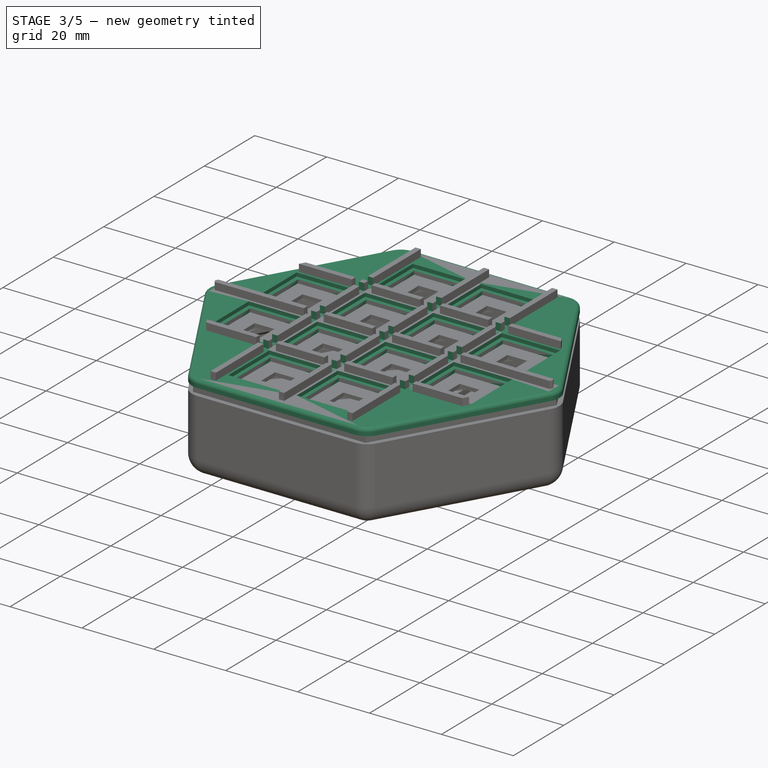
[diagram: stage 3 of 5 — iso view after this stage's code; geometry added in this stage tinted green]
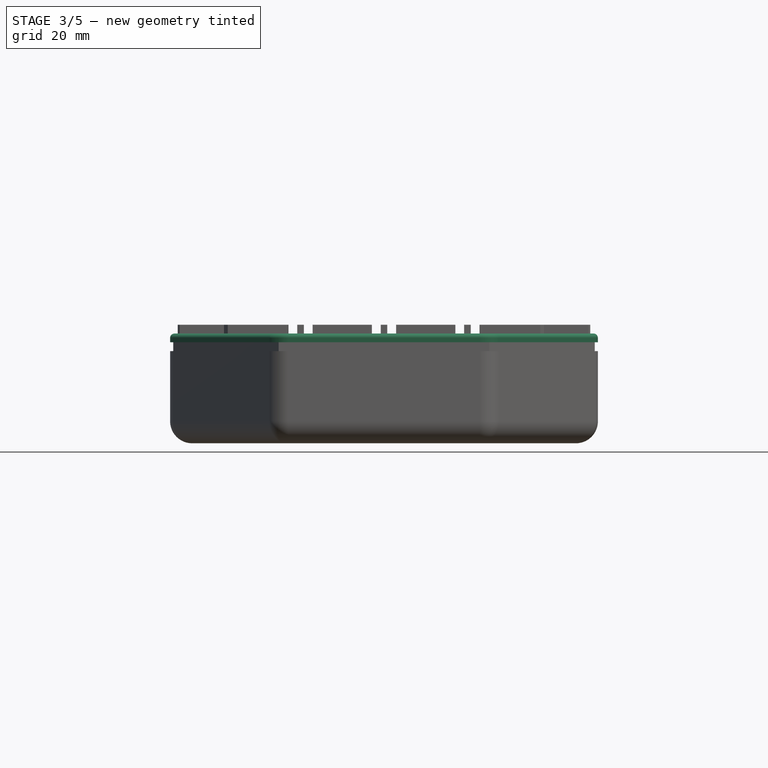
[diagram: stage 3 of 5 — front view after this stage's code; geometry added in this stage tinted green]
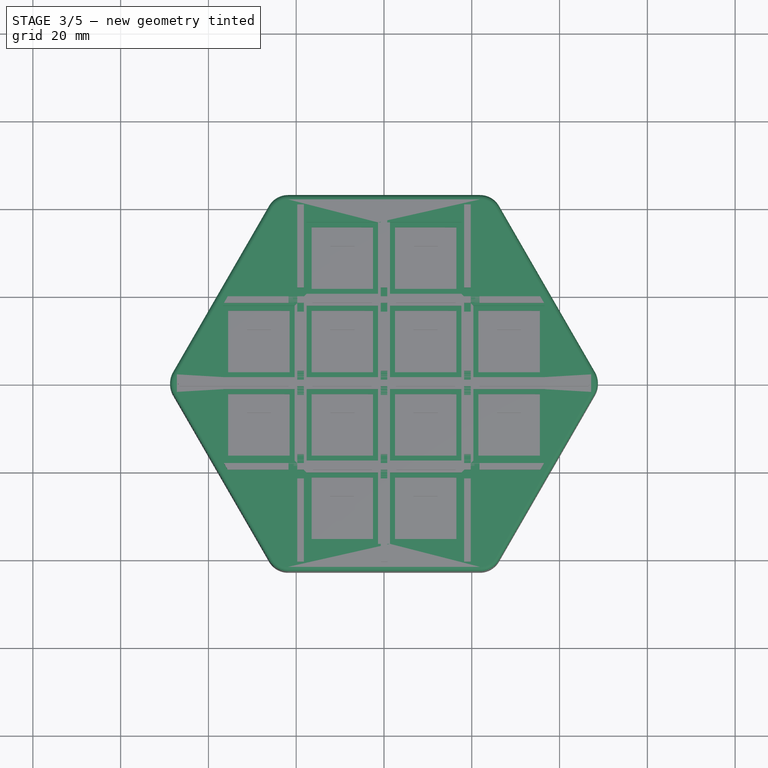
[diagram: stage 3 of 5 — top view after this stage's code; geometry added in this stage tinted green]
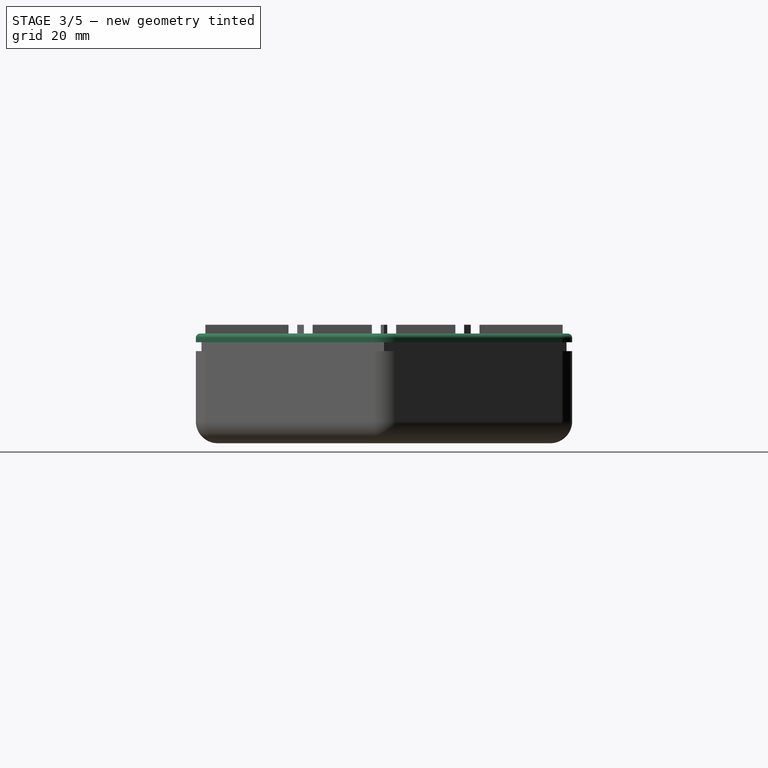
[diagram: stage 3 of 5 — right view after this stage's code; geometry added in this stage tinted green]
FEATURE [PartDesign::Body] Body001  label="[old] Case"
  Group = -> [Sketch005,Sketch006,Pad001,Fillet002,Pocket003,Chamfer,Sketch007,Pad002,Sketch008,Pocket004,Sketch009,Pocket005,Fillet003]
  Origin = -> Origin001
  Placement = pos=(0,0,4) rot=(0,0,1;0rad)
  Tip = -> Fillet003
FEATURE [Sketcher::SketchObject] Sketch011
  MapMode = 5
  Support = -> [XY_Plane002]
  expr: Constraints[19] = (<<v>>.key_size + <<v>>.key_spacing + <<v>>.key_spacing) * 4 + <<v>>.plate_lip_width * 2
  sketch-geometry (7):
    g0: LineSegment StartX=-49.5 StartY=0 StartZ=0 EndX=-24.75 EndY=-42.8683 EndZ=0
    g1: LineSegment StartX=-24.75 StartY=-42.8683 StartZ=0 EndX=24.75 EndY=-42.8683 EndZ=0
    g2: LineSegment StartX=24.75 StartY=-42.8683 StartZ=0 EndX=49.5 EndY=0 EndZ=0
    g3: LineSegment StartX=49.5 StartY=0 StartZ=0 EndX=24.75 EndY=42.8683 EndZ=0
    g4: LineSegment StartX=24.75 StartY=42.8683 StartZ=0 EndX=-24.75 EndY=42.8683 EndZ=0
    g5: LineSegment StartX=-24.75 StartY=42.8683 StartZ=0 EndX=-49.5 EndY=0 EndZ=0
    g6: Circle [constr] CenterX=0 CenterY=0 CenterZ=0 NormalX=0 NormalY=0 NormalZ=1 AngleXU=0 Radius=49.5
  constraints (16):
    c: Coincident(g0,g1)
    c: Coincident(g1,g2)
    c: Coincident(g2,g3)
    c: Coincident(g3,g4)
    c: Coincident(g4,g5)
    c: Coincident(g5,g0)
    c: Equal(g0, g1-g5) x5
    c: PointOnObject(g0,g6)
    c: PointOnObject(g1,g6)
    c: PointOnObject(g2,g6)
    c: PointOnObject(g3,g6)
    c: PointOnObject(g4,g6)
    c: PointOnObject(g5,g6)
    c: Coincident(g6,g-1)
    c: Horizontal(g4)
    c: DistanceX(g0,g2) = 99
FEATURE [PartDesign::Pad] Pad003  label="0001 - base "
  AllowMultiFace = false
  Direction = (1,1,1)
  Length = 4
  Length2 = 100
  Profile = -> Sketch011
  Type = 0
  expr: Length = <<v>>.plate_thickness
FEATURE [Sketcher::SketchObject] Sketch010
  MapMode = 5
  Placement = pos=(0,0,4) rot=(0,0,1;0rad)
  Support = -> [Pad003]
  expr: Constraints[9] = <<v>>.key_size
  expr: Constraints[22] = <<v>>.key_spacing / 2
  expr: Constraints[21] = <<v>>.key_spacing
  expr: Constraints[23] = <<v>>.key_spacing / 2
  expr: Constraints[35] = <<v>>.key_spacing
  sketch-geometry (12):
    g0: LineSegment StartX=-16.5 StartY=16.5 StartZ=0 EndX=-2.5 EndY=16.5 EndZ=0
    g1: LineSegment StartX=-2.5 StartY=16.5 StartZ=0 EndX=-2.5 EndY=2.5 EndZ=0
    g2: LineSegment StartX=-2.5 StartY=2.5 StartZ=0 EndX=-16.5 EndY=2.5 EndZ=0
    g3: LineSegment StartX=-16.5 StartY=2.5 StartZ=0 EndX=-16.5 EndY=16.5 EndZ=0
    g4: LineSegment StartX=-35.5 StartY=16.5 StartZ=0 EndX=-21.5 EndY=16.5 EndZ=0
    g5: LineSegment StartX=-21.5 StartY=16.5 StartZ=0 EndX=-21.5 EndY=2.5 EndZ=0
    g6: LineSegment StartX=-21.5 StartY=2.5 StartZ=0 EndX=-35.5 EndY=2.5 EndZ=0
    g7: LineSegment StartX=-35.5 StartY=2.5 StartZ=0 EndX=-35.5 EndY=16.5 EndZ=0
    g8: LineSegment StartX=-16.5 StartY=35.5 StartZ=0 EndX=-2.5 EndY=35.5 EndZ=0
    g9: LineSegment StartX=-2.5 StartY=35.5 StartZ=0 EndX=-2.5 EndY=21.5 EndZ=0
    g10: LineSegment StartX=-2.5 StartY=21.5 StartZ=0 EndX=-16.5 EndY=21.5 EndZ=0
    g11: LineSegment StartX=-16.5 StartY=21.5 StartZ=0 EndX=-16.5 EndY=35.5 EndZ=0
  constraints (36):
    c: Coincident(g0,g1)
    c: Coincident(g1,g2)
    c: Coincident(g2,g3)
    c: Coincident(g3,g0)
    c: Horizontal(g0)
    c: Horizontal(g2)
    c: Vertical(g1)
    c: Vertical(g3)
    c: Equal(g0,g3)
    c: DistanceX(g0,g0) = 14
    c: Coincident(g4,g5)
    c: Coincident(g5,g6)
    c: Coincident(g6,g7)
    c: Coincident(g7,g4)
    c: Horizontal(g4)
    c: Horizontal(g6)
    c: Vertical(g5)
    c: Vertical(g7)
    c: Equal(g0,g4)
    c: Equal(g4,g7)
    c: Horizontal(g5,g2)
    c: DistanceX(g5,g2) = 5
    c: DistanceX(g1,g-1) = 2.5
    c: DistanceY(g-1,g1) = 2.5
    c: Coincident(g8,g9)
    c: Coincident(g9,g10)
    c: Coincident(g10,g11)
    c: Coincident(g11,g8)
    c: Horizontal(g8)
    c: Horizontal(g10)
    c: Vertical(g9)
    c: Vertical(g11)
    c: Equal(g0,g11)
    c: Equal(g11,g8)
    c: Vertical(g9,g0)
    c: DistanceY(g0,g9) = 5
FEATURE [PartDesign::Pocket] Pocket006  label="0002 - cut keyholes (1/4)"
  AllowMultiFace = false
  BaseFeature = -> Pad003
  Length = 5
  Length2 = 100
  Profile = -> Sketch010
  Type = 1
FEATURE [Sketcher::SketchObject] Sketch012
  MapMode = 5
  Placement = pos=(0,0,5) rot=(0,0,1;0rad)
  expr: Constraints[29] = <<v>>.key_with_lip_size
  expr: Constraints[32] = <<v>>.key_spacing / 2 - <<v>>.key_lip_size / 2
  expr: Constraints[33] = <<v>>.key_spacing / 2 - <<v>>.key_lip_size / 2
  expr: Constraints[34] = <<v>>.key_spacing - <<v>>.key_lip_size
  expr: Constraints[35] = <<v>>.key_spacing - <<v>>.key_lip_size
  sketch-geometry (12):
    g0: LineSegment StartX=-17.625 StartY=17.625 StartZ=0 EndX=-1.375 EndY=17.625 EndZ=0
    g1: LineSegment StartX=-1.375 StartY=17.625 StartZ=0 EndX=-1.375 EndY=1.375 EndZ=0
    g2: LineSegment StartX=-1.375 StartY=1.375 StartZ=0 EndX=-17.625 EndY=1.375 EndZ=0
    g3: LineSegment StartX=-17.625 StartY=1.375 StartZ=0 EndX=-17.625 EndY=17.625 EndZ=0
    g4: LineSegment StartX=-36.625 StartY=17.625 StartZ=0 EndX=-20.375 EndY=17.625 EndZ=0
    g5: LineSegment StartX=-20.375 StartY=17.625 StartZ=0 EndX=-20.375 EndY=1.375 EndZ=0
    g6: LineSegment StartX=-20.375 StartY=1.375 StartZ=0 EndX=-36.625 EndY=1.375 EndZ=0
    g7: LineSegment StartX=-36.625 StartY=1.375 StartZ=0 EndX=-36.625 EndY=17.625 EndZ=0
    g8: LineSegment StartX=-17.625 StartY=36.625 StartZ=0 EndX=-1.375 EndY=36.625 EndZ=0
    g9: LineSegment StartX=-1.375 StartY=36.625 StartZ=0 EndX=-1.375 EndY=20.375 EndZ=0
    g10: LineSegment StartX=-1.375 StartY=20.375 StartZ=0 EndX=-17.625 EndY=20.375 EndZ=0
    g11: LineSegment StartX=-17.625 StartY=20.375 StartZ=0 EndX=-17.625 EndY=36.625 EndZ=0
  constraints (36):
    c: Coincident(g0,g1)
    c: Coincident(g1,g2)
    c: Coincident(g2,g3)
    c: Coincident(g3,g0)
    c: Horizontal(g0)
    c: Horizontal(g2)
    c: Vertical(g1)
    c: Vertical(g3)
    c: Coincident(g4,g5)
    c: Coincident(g5,g6)
    c: Coincident(g6,g7)
    c: Coincident(g7,g4)
    c: Horizontal(g4)
    c: Horizontal(g6)
    c: Vertical(g5)
    c: Vertical(g7)
    c: Coincident(g8,g9)
    c: Coincident(g9,g10)
    c: Coincident(g10,g11)
    c: Coincident(g11,g8)
    c: Horizontal(g8)
    c: Horizontal(g10)
    c: Vertical(g9)
    c: Vertical(g11)
    c: Equal(g10,g11)
    c: Equal(g11,g0)
    c: Equal(g0,g3)
    c: Equal(g3,g4)
    c: Equal(g4,g7)
    c: DistanceX(g0,g0) = 16.25
    c: Horizontal(g2,g5)
    c: Vertical(g10,g0)
    c: DistanceX(g1,g-1) = 1.375
    c: DistanceY(g-1,g1) = 1.375
    c: DistanceX(g4,g0) = 2.75
    c: DistanceY(g0,g10) = 2.75
FEATURE [PartDesign::Pocket] Pocket007  label="0003 - cut keyhole lip (1/4)"
  AllowMultiFace = false
  BaseFeature = -> Pocket006
  Length = 2
  Length2 = 100
  Profile = -> Sketch012
  Type = 0
  expr: Length = 2
FEATURE [PartDesign::PolarPattern] PolarPattern  label="0004 - polar pattern keyholes"
  Angle = 360
  Axis = -> Sketch012 [N_Axis]
  BaseFeature = -> Pocket007
  Occurrences = 4
  Originals = -> [Pocket007,Pocket006]
FEATURE [Sketcher::SketchObject] Sketch013
  MapMode = 5
  Placement = pos=(0,0,0) rot=(1,0,0;3.14159rad)
  Support = -> [PolarPattern]
  expr: Constraints[19] = (<<v>>.key_spacing + <<v>>.key_spacing + <<v>>.key_size) * 4
  expr: Constraints[39] = (<<v>>.key_spacing + <<v>>.key_spacing + <<v>>.key_size) * 4 + 2 * <<v>>.plate_lip_width
  sketch-geometry (14):
    g0: LineSegment StartX=-24 StartY=-41.5692 StartZ=0 EndX=24 EndY=-41.5692 EndZ=0
    g1: LineSegment StartX=24 StartY=-41.5692 StartZ=0 EndX=48 EndY=0 EndZ=0
    g2: LineSegment StartX=48 StartY=0 StartZ=0 EndX=24 EndY=41.5692 EndZ=0
    g3: LineSegment StartX=24 StartY=41.5692 StartZ=0 EndX=-24 EndY=41.5692 EndZ=0
    g4: LineSegment StartX=-24 StartY=41.5692 StartZ=0 EndX=-48 EndY=0 EndZ=0
    g5: LineSegment StartX=-48 StartY=0 StartZ=0 EndX=-24 EndY=-41.5692 EndZ=0
    g6: Circle [constr] CenterX=0 CenterY=0 CenterZ=0 NormalX=0 NormalY=0 NormalZ=1 AngleXU=0 Radius=48
    g7: LineSegment StartX=24.75 StartY=-42.8683 StartZ=0 EndX=49.5 EndY=0 EndZ=0
    g8: LineSegment StartX=49.5 StartY=0 StartZ=0 EndX=24.75 EndY=42.8683 EndZ=0
    g9: LineSegment StartX=24.75 StartY=42.8683 StartZ=0 EndX=-24.75 EndY=42.8683 EndZ=0
    g10: LineSegment StartX=-24.75 StartY=42.8683 StartZ=0 EndX=-49.5 EndY=7.1e-15 EndZ=0
    g11: LineSegment StartX=-49.5 StartY=7.1e-15 StartZ=0 EndX=-24.75 EndY=-42.8683 EndZ=0
    g12: LineSegment StartX=-24.75 StartY=-42.8683 StartZ=0 EndX=24.75 EndY=-42.8683 EndZ=0
    g13: Circle [constr] CenterX=0 CenterY=0 CenterZ=0 NormalX=0 NormalY=0 NormalZ=1 AngleXU=0 Radius=49.5
  constraints (32):
    c: Coincident(g0,g1)
    c: Coincident(g1,g2)
    c: Coincident(g2,g3)
    c: Coincident(g3,g4)
    c: Coincident(g4,g5)
    c: Coincident(g5,g0)
    c: Equal(g0, g1-g5) x5
    c: PointOnObject(g0,g6)
    c: PointOnObject(g1,g6)
    c: PointOnObject(g2,g6)
    c: PointOnObject(g3,g6)
    c: PointOnObject(g4,g6)
    c: PointOnObject(g5,g6)
    c: Coincident(g6,g-1)
    c: Horizontal(g3)
    c: DistanceX(g4,g1) = 96
    c: Coincident(g7,g8)
    c: Coincident(g8,g9)
    c: Coincident(g9,g10)
    c: Coincident(g10,g11)
    c: Coincident(g11,g12)
    c: Coincident(g12,g7)
    c: Equal(g7, g8-g12) x5
    c: PointOnObject(g7,g13)
    c: PointOnObject(g8,g13)
    c: PointOnObject(g9,g13)
    c: PointOnObject(g10,g13)
    c: PointOnObject(g11,g13)
    c: PointOnObject(g12,g13)
    c: Horizontal(g9)
    c: Coincident(g13,g-1)
    c: DistanceX(g10,g7) = 99
FEATURE [PartDesign::Pocket] Pocket008  label="0005 - pocket lip"
  AllowMultiFace = false
  BaseFeature = -> PolarPattern
  Length = 2
  Length2 = 100
  Profile = -> Sketch013
  Type = 0
  expr: Length = <<v>>.plate_lip_depth
FEATURE [PartDesign::Fillet] Fillet004  label="0006 - fillet sides"
  Base = -> Pocket008 [Edge72,Edge16,Edge2,Edge4,Edge70,Edge71]
  BaseFeature = -> Pocket008
  Radius = 5
  SupportTransform = false
  expr: Radius = <<v>>.plate_fillet_radius
FEATURE [PartDesign::Fillet] Fillet005  label="0007 - fillet top face"
  Base = -> Fillet004 [Edge31,Edge34,Edge33,Edge29,Edge27,Edge23,Edge4,Edge25,Edge26,Edge28,Edge30,Edge32]
  BaseFeature = -> Fillet004
  Radius = 1
  SupportTransform = false
FEATURE [Sketcher::SketchObject] Sketch025
  ExternalGeometry = -> [Pocket016]
  MapMode = 5
  Placement = pos=(0,0,6) rot=(0,0,1;0rad)
  Support = -> [Pocket016]
  sketch-geometry (24):
    g0: LineSegment StartX=-35.5973 StartY=21.75 StartZ=0 EndX=35.5973 EndY=21.75 EndZ=0
    g1: LineSegment StartX=35.5973 StartY=21.75 StartZ=0 EndX=35.5973 EndY=19.75 EndZ=0
    g2: LineSegment StartX=35.5973 StartY=19.75 StartZ=0 EndX=-35.5973 EndY=19.75 EndZ=0
    g3: LineSegment StartX=-35.5973 StartY=19.75 StartZ=0 EndX=-35.5973 EndY=21.75 EndZ=0
    g4: LineSegment StartX=-36.4634 StartY=18.25 StartZ=0 EndX=36.4634 EndY=18.25 EndZ=0
    g5: LineSegment StartX=36.4634 StartY=18.25 StartZ=0 EndX=36.4634 EndY=16.25 EndZ=0
    g6: LineSegment StartX=36.4634 StartY=16.25 StartZ=0 EndX=-36.4634 EndY=16.25 EndZ=0
    g7: LineSegment StartX=-36.4634 StartY=16.25 StartZ=0 EndX=-36.4634 EndY=18.25 EndZ=0
    g8: LineSegment StartX=-46.567 StartY=2.75 StartZ=0 EndX=46.567 EndY=2.75 EndZ=0
    g9: LineSegment StartX=46.567 StartY=2.75 StartZ=0 EndX=46.567 EndY=0.75 EndZ=0
    g10: LineSegment StartX=46.567 StartY=0.75 StartZ=0 EndX=-46.567 EndY=0.75 EndZ=0
    g11: LineSegment StartX=-46.567 StartY=0.75 StartZ=0 EndX=-46.567 EndY=2.75 EndZ=0
    g12: LineSegment StartX=-46.567 StartY=-0.75 StartZ=0 EndX=46.567 EndY=-0.75 EndZ=0
    g13: LineSegment StartX=46.567 StartY=-0.75 StartZ=0 EndX=46.567 EndY=-2.75 EndZ=0
    g14: LineSegment StartX=46.567 StartY=-2.75 StartZ=0 EndX=-46.567 EndY=-2.75 EndZ=0
    g15: LineSegment StartX=-46.567 StartY=-2.75 StartZ=0 EndX=-46.567 EndY=-0.75 EndZ=0
    g16: LineSegment StartX=-36.4634 StartY=-16.25 StartZ=0 EndX=36.4634 EndY=-16.25 EndZ=0
    g17: LineSegment StartX=36.4634 StartY=-16.25 StartZ=0 EndX=36.4634 EndY=-18.25 EndZ=0
    g18: LineSegment StartX=36.4634 StartY=-18.25 StartZ=0 EndX=-36.4634 EndY=-18.25 EndZ=0
    g19: LineSegment StartX=-36.4634 StartY=-18.25 StartZ=0 EndX=-36.4634 EndY=-16.25 EndZ=0
    g20: LineSegment StartX=-35.5973 StartY=-19.75 StartZ=0 EndX=35.5973 EndY=-19.75 EndZ=0
    g21: LineSegment StartX=35.5973 StartY=-19.75 StartZ=0 EndX=35.5973 EndY=-21.75 EndZ=0
    g22: LineSegment StartX=35.5973 StartY=-21.75 StartZ=0 EndX=-35.5973 EndY=-21.75 EndZ=0
    g23: LineSegment StartX=-35.5973 StartY=-21.75 StartZ=0 EndX=-35.5973 EndY=-19.75 EndZ=0
  constraints (60):
    c: Coincident(g0,g1)
    c: Coincident(g1,g2)
    c: Coincident(g2,g3)
    c: Coincident(g3,g0)
    c: Horizontal(g0)
    c: Vertical(g1)
    c: Vertical(g3)
    c: Coincident(g4,g5)
    c: Coincident(g5,g6)
    c: Coincident(g6,g7)
    c: Coincident(g7,g4)
    c: Horizontal(g6)
    c: Vertical(g5)
    c: Vertical(g7)
    c: Coincident(g8,g9)
    c: Coincident(g9,g10)
    c: Coincident(g10,g11)
    c: Coincident(g11,g8)
    c: Horizontal(g8)
    c: Vertical(g9)
    c: Vertical(g11)
    c: Coincident(g12,g13)
    c: Coincident(g13,g14)
    c: Coincident(g14,g15)
    c: Coincident(g15,g12)
    c: Horizontal(g14)
    c: Vertical(g13)
    c: Vertical(g15)
    c: Coincident(g16,g17)
    c: Coincident(g17,g18)
    c: Coincident(g18,g19)
    c: Coincident(g19,g16)
    c: Horizontal(g16)
    c: Vertical(g17)
    c: Vertical(g19)
    c: Coincident(g20,g21)
    c: Coincident(g21,g22)
    c: Coincident(g22,g23)
    c: Coincident(g23,g20)
    c: Horizontal(g22)
    c: Vertical(g21)
    c: Vertical(g23)
    c: Equal(g3,g7)
    c: Equal(g7,g11)
    c: Equal(g11,g15)
    c: Equal(g15,g19)
    c: Equal(g19,g23)
    c: DistanceY(g15,g15) = 2
    c: Coincident(g17,g-11)
    c: Coincident(g20,g-12)
    c: Coincident(g12,g-10)
    c: Coincident(g9,g-9)
    c: Coincident(g4,g-8)
    c: Coincident(g1,g-7)
    c: Coincident(g2,g-5)
    c: Coincident(g-6,g4)
    c: Coincident(g10,g-4)
    c: Coincident(g12,g-3)
    c: Coincident(g18,g-13)
    c: Coincident(g20,g-13)
FEATURE [PartDesign::Pocket] Pocket017  label="0003 - horizontal slots for wires"
  AllowMultiFace = false
  BaseFeature = -> Pocket016
  Length = 2
  Length2 = 100
  Profile = -> Sketch025
  Type = 0
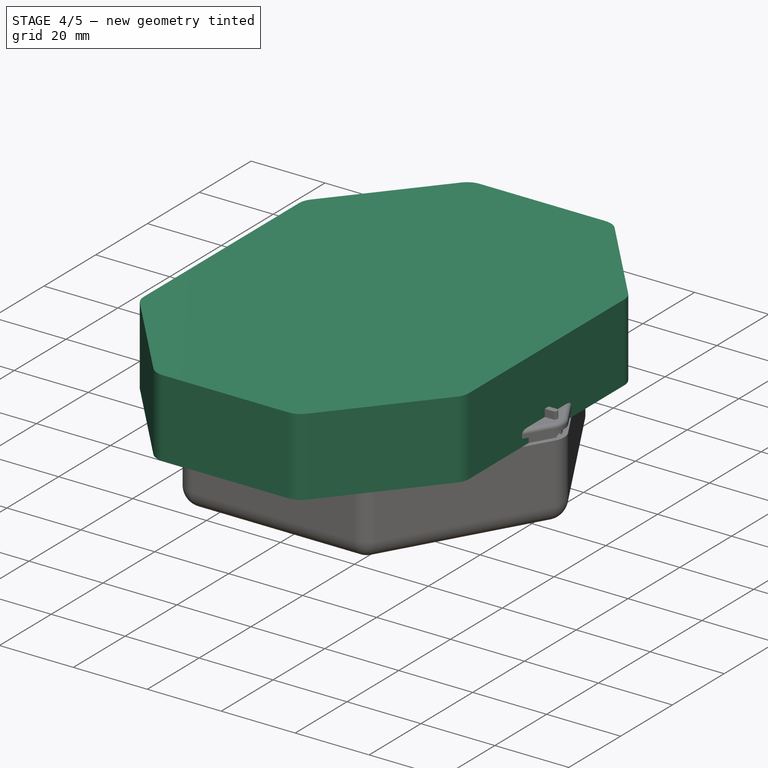
[diagram: stage 4 of 5 — iso view after this stage's code; geometry added in this stage tinted green]
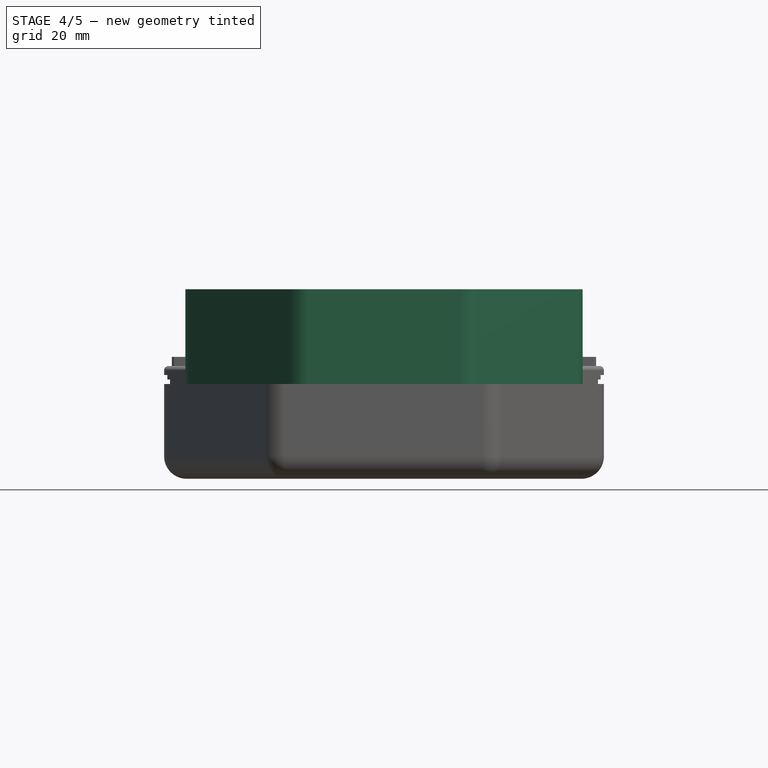
[diagram: stage 4 of 5 — front view after this stage's code; geometry added in this stage tinted green]
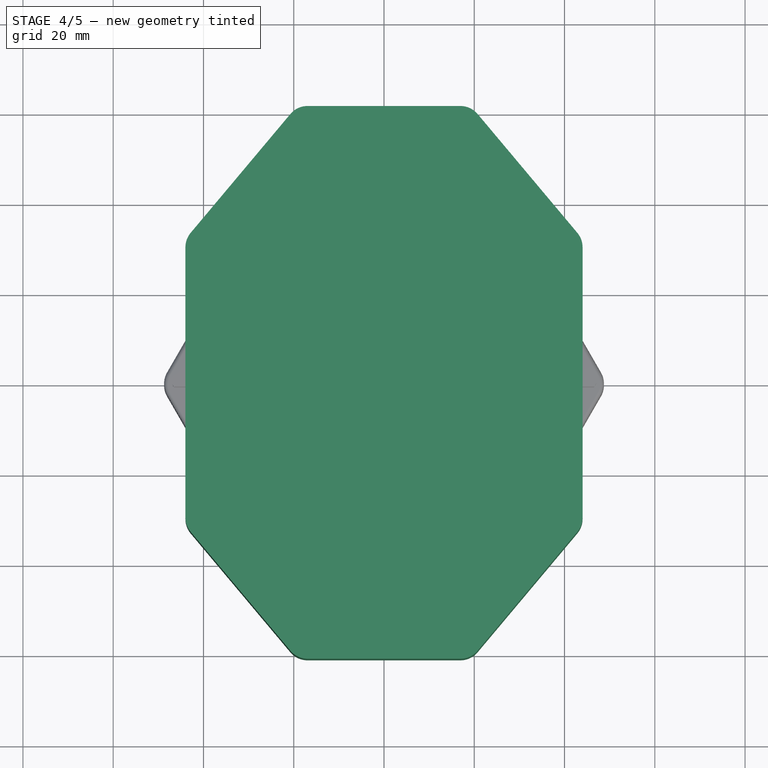
[diagram: stage 4 of 5 — top view after this stage's code; geometry added in this stage tinted green]
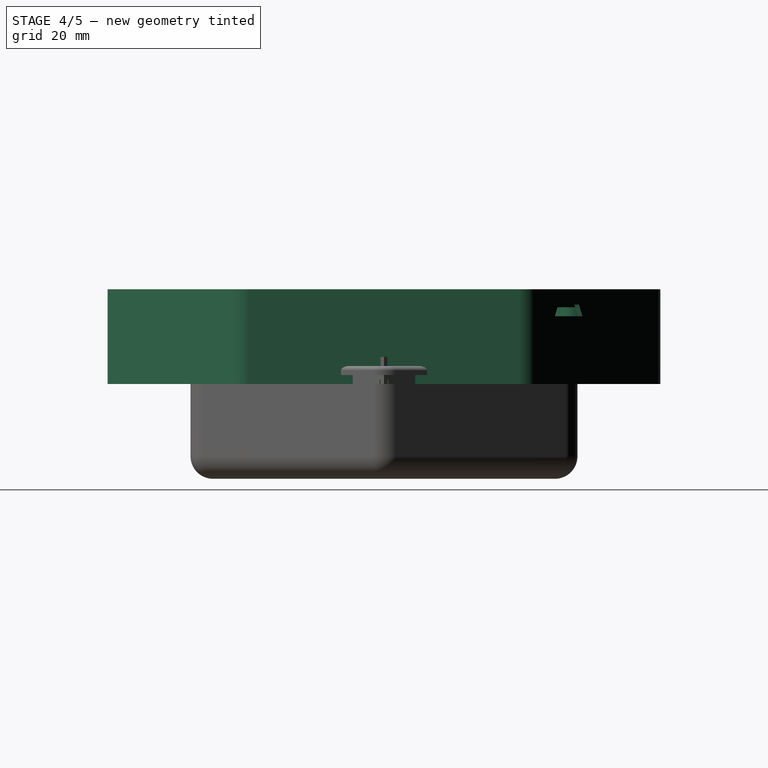
[diagram: stage 4 of 5 — right view after this stage's code; geometry added in this stage tinted green]
FEATURE [PartDesign::Body] Body  label="[old] Top Plate"
  Group = -> [Sketch,Sketch001,Pad,Sketch002,Pocket,Mirrored,Sketch003,Pocket001,Fillet,Fillet001,Sketch004,Pocket002,Mirrored001]
  Origin = -> Origin
  Tip = -> Mirrored001
FEATURE [Sketcher::SketchObject] Sketch006
  MapMode = 5
  Support = -> [XY_Plane001]
  expr: Constraints[29] = <<v>>.plate_height + <<v>>.plate_lip_width + 2
  expr: Constraints[28] = <<v>>.plate_width + <<v>>.plate_lip_width * 2
  expr: Constraints[27] = <<v>>.plate_octagon_angle
  sketch-geometry (11):
    g0: LineSegment StartX=-19.25 StartY=61.2427 StartZ=0 EndX=19.25 EndY=61.2427 EndZ=0
    g1: LineSegment StartX=19.25 StartY=61.2427 StartZ=0 EndX=43.9973 EndY=31.75 EndZ=0
    g2: LineSegment StartX=43.9973 StartY=31.75 StartZ=0 EndX=43.9973 EndY=-31.75 EndZ=0
    g3: LineSegment StartX=43.9973 StartY=-31.75 StartZ=0 EndX=19.25 EndY=-61.2427 EndZ=0
    g4: LineSegment StartX=19.25 StartY=-61.2427 StartZ=0 EndX=-19.25 EndY=-61.2427 EndZ=0
    g5: LineSegment StartX=-19.25 StartY=-61.2427 StartZ=0 EndX=-43.9973 EndY=-31.75 EndZ=0
    g6: LineSegment StartX=-43.9973 StartY=-31.75 StartZ=0 EndX=-43.9973 EndY=31.75 EndZ=0
    g7: LineSegment StartX=-43.9973 StartY=31.75 StartZ=0 EndX=-19.25 EndY=61.2427 EndZ=0
    g8: LineSegment [constr] StartX=-19.25 StartY=61.2427 StartZ=0 EndX=0 EndY=0 EndZ=0
    g9: LineSegment [constr] StartX=19.25 StartY=61.2427 StartZ=0 EndX=0 EndY=0 EndZ=0
    g10: LineSegment [constr] StartX=0 StartY=0 StartZ=0 EndX=19.25 EndY=-61.2427 EndZ=0
  constraints (30):
    c: Coincident(g0,g1)
    c: Coincident(g1,g2)
    c: Coincident(g2,g3)
    c: Coincident(g3,g4)
    c: Coincident(g4,g5)
    c: Coincident(g5,g6)
    c: Coincident(g6,g7)
    c: Coincident(g7,g0)
    c: Equal(g3,g4)
    c: Equal(g4,g5)
    c: Equal(g5,g7)
    c: Equal(g7,g0)
    c: Equal(g0,g1)
    c: Horizontal(g0)
    c: Horizontal(g4)
    c: Vertical(g6)
    c: Vertical(g2)
    c: Horizontal(g6,g1)
    c: Horizontal(g5,g2)
    c: Coincident(g8,g0)
    c: Coincident(g9,g0)
    c: Coincident(g9,g8)
    c: Coincident(g10,g8)
    c: Coincident(g10,g3)
    c: Equal(g8,g9)
    c: Equal(g9,g10)
    c: Coincident(g8,g-1)
    c: Angle(g0,g1) = 2.26893
    c: DistanceX(g0,g0) = 38.5
    c: DistanceY(g2,g2) = 63.5
FEATURE [PartDesign::Pad] Pad001  label="0001 - bad base shape"
  AllowMultiFace = false
  Direction = (1,1,1)
  Length = 21
  Length2 = 100
  Profile = -> Sketch006
  Type = 0
  expr: Length = <<v>>.case_height
FEATURE [PartDesign::Fillet] Fillet002  label="0002 - roundover edges"
  Base = -> Pad001 [Edge5,Edge2,Edge8,Edge11,Edge14,Edge17,Edge20,Edge1]
  BaseFeature = -> Pad001
  Radius = 5
  SupportTransform = false
  expr: Radius = <<v>>.plate_fillet_radius
FEATURE [Sketcher::SketchObject] Sketch005
  MapMode = 5
  Placement = pos=(0,0,0) rot=(1,0,0;3.14159rad)
  Support = -> [Fillet002]
  expr: Constraints[29] = <<v>>.plate_height + <<v>>.case_fit_tolerance
  expr: Constraints[28] = <<v>>.plate_width + <<v>>.case_fit_tolerance
  expr: Constraints[19] = <<v>>.plate_octagon_angle
  sketch-geometry (11):
    g0: LineSegment StartX=-17.8 StartY=57.3212 StartZ=0 EndX=17.8 EndY=57.3212 EndZ=0
    g1: LineSegment StartX=17.8 StartY=57.3212 StartZ=0 EndX=40.6832 EndY=30.05 EndZ=0
    g2: LineSegment StartX=40.6832 StartY=30.05 StartZ=0 EndX=40.6832 EndY=-30.05 EndZ=0
    g3: LineSegment StartX=40.6832 StartY=-30.05 StartZ=0 EndX=17.8 EndY=-57.3212 EndZ=0
    g4: LineSegment StartX=17.8 StartY=-57.3212 StartZ=0 EndX=-17.8 EndY=-57.3212 EndZ=0
    g5: LineSegment StartX=-17.8 StartY=-57.3212 StartZ=0 EndX=-40.6832 EndY=-30.05 EndZ=0
    g6: LineSegment StartX=-40.6832 StartY=-30.05 StartZ=0 EndX=-40.6832 EndY=30.05 EndZ=0
    g7: LineSegment StartX=-40.6832 StartY=30.05 StartZ=0 EndX=-17.8 EndY=57.3212 EndZ=0
    g8: LineSegment [constr] StartX=-17.8 StartY=57.3212 StartZ=0 EndX=0 EndY=0 EndZ=0
    g9: LineSegment [constr] StartX=17.8 StartY=57.3212 StartZ=0 EndX=0 EndY=0 EndZ=0
    g10: LineSegment [constr] StartX=0 StartY=0 StartZ=0 EndX=17.8 EndY=-57.3212 EndZ=0
  constraints (30):
    c: Coincident(g0,g1)
    c: Coincident(g1,g2)
    c: Coincident(g2,g3)
    c: Coincident(g3,g4)
    c: Coincident(g4,g5)
    c: Coincident(g5,g6)
    c: Coincident(g6,g7)
    c: Coincident(g7,g0)
    c: Horizontal(g0)
    c: Horizontal(g4)
    c: Vertical(g6)
    c: Vertical(g2)
    c: Equal(g7,g0)
    c: Equal(g0,g1)
    c: Equal(g3,g4)
    c: Equal(g4,g5)
    c: Horizontal(g2,g5)
    c: Horizontal(g1,g6)
    c: Vertical(g0,g4)
    c: Angle(g0,g1) = 2.26893
    c: Coincident(g8,g0)
    c: Coincident(g8,g-1)
    c: Coincident(g9,g0)
    c: Coincident(g9,g-1)
    c: Coincident(g10,g-1)
    c: Coincident(g10,g3)
    c: Equal(g9,g8)
    c: Equal(g8,g10)
    c: DistanceX(g0,g0) = 35.6
    c: DistanceY(g2,g2) = 60.1
FEATURE [PartDesign::Pocket] Pocket003  label="0003 - pocket main area"
  AllowMultiFace = false
  BaseFeature = -> Fillet002
  Length = 18
  Length2 = 100
  Profile = -> Sketch005
  Type = 0
  expr: Length = <<v>>.case_pocket_depth
FEATURE [PartDesign::Chamfer] Chamfer  label="0004 - chamfer fitment to lid"
  Angle = 45
  Base = -> Pocket003 [Edge27,Edge20,Edge26,Edge25,Edge24,Edge23,Edge22,Edge21]
  BaseFeature = -> Pocket003
  ChamferType = 0
  FlipDirection = false
  Size = 1
  Size2 = 1
  SupportTransform = false
FEATURE [Sketcher::SketchObject] Sketch007
  MapMode = 5
  Placement = pos=(0,0,18) rot=(1,0,0;3.14159rad)
  Support = -> [Chamfer]
  expr: Constraints[23] = <<v>>.slide_mount_h_padding / 2
  expr: Constraints[16] = <<v>>.slide_mount_h_spacing
  expr: Constraints[22] = <<v>>.slide_mount_v_spacing / 2
  expr: Constraints[17] = <<v>>.slide_mount_v_spacing
  expr: Constraints[0] = <<v>>.slide_mount_radius
  expr: Constraints[15] = <<v>>.slide_mount_h_spacing
  expr: Constraints[21] = <<v>>.slide_mount_h_padding
  expr: Constraints[39] = <<v>>.slide_mount_radius + 2
  sketch-geometry (16):
    g0: Circle CenterX=2.875 CenterY=42.205 CenterZ=0 NormalX=0 NormalY=0 NormalZ=1 AngleXU=0 Radius=1.45
    g1: Circle CenterX=17.975 CenterY=42.205 CenterZ=0 NormalX=0 NormalY=0 NormalZ=1 AngleXU=0 Radius=1.45
    g2: Circle CenterX=2.875 CenterY=-42.205 CenterZ=0 NormalX=0 NormalY=0 NormalZ=1 AngleXU=0 Radius=1.45
    g3: Circle CenterX=17.975 CenterY=-42.205 CenterZ=0 NormalX=0 NormalY=0 NormalZ=1 AngleXU=0 Radius=1.45
    g4: Circle CenterX=-2.875 CenterY=42.205 CenterZ=0 NormalX=0 NormalY=0 NormalZ=1 AngleXU=0 Radius=1.45
    g5: Circle CenterX=-17.975 CenterY=42.205 CenterZ=0 NormalX=0 NormalY=0 NormalZ=1 AngleXU=0 Radius=1.45
    g6: Circle CenterX=-17.975 CenterY=-42.205 CenterZ=0 NormalX=0 NormalY=0 NormalZ=1 AngleXU=0 Radius=1.45
    g7: Circle CenterX=-2.875 CenterY=-42.205 CenterZ=0 NormalX=0 NormalY=0 NormalZ=1 AngleXU=0 Radius=1.45
    g8: ArcOfCircle CenterX=-17.975 CenterY=42.205 CenterZ=0 NormalX=0 NormalY=0 NormalZ=1 AngleXU=0 Radius=3.45 StartAngle=1.5708 EndAngle=4.71239
    g9: ArcOfCircle CenterX=17.975 CenterY=42.205 CenterZ=0 NormalX=0 NormalY=0 NormalZ=1 AngleXU=0 Radius=3.45 StartAngle=4.71239 EndAngle=7.85398
    g10: LineSegment StartX=-17.975 StartY=38.755 StartZ=0 EndX=17.975 EndY=38.755 EndZ=0
    g11: LineSegment StartX=-17.975 StartY=45.655 StartZ=0 EndX=17.975 EndY=45.655 EndZ=0
    g12: ArcOfCircle CenterX=-17.975 CenterY=-42.205 CenterZ=0 NormalX=0 NormalY=0 NormalZ=1 AngleXU=0 Radius=3.45 StartAngle=1.5708 EndAngle=4.71239
    g13: ArcOfCircle CenterX=17.975 CenterY=-42.205 CenterZ=0 NormalX=0 NormalY=0 NormalZ=1 AngleXU=0 Radius=3.45 StartAngle=4.71239 EndAngle=7.85398
    g14: LineSegment StartX=-17.975 StartY=-45.655 StartZ=0 EndX=17.975 EndY=-45.655 EndZ=0
    g15: LineSegment StartX=-17.975 StartY=-38.755 StartZ=0 EndX=17.975 EndY=-38.755 EndZ=0
  constraints (41):
    c: Radius(g6) = 1.45
    c: Equal(g6,g7)
    c: Equal(g6,g5)
    c: Equal(g6,g4)
    c: Equal(g6,g0)
    c: Equal(g6,g1)
    c: Equal(g6,g3)
    c: Equal(g6,g2)
    c: Horizontal(g1,g0)
    c: Horizontal(g0,g4)
    c: Horizontal(g4,g5)
    c: Vertical(g1,g3)
    c: Vertical(g2,g0)
    c: Vertical(g4,g7)
    c: Vertical(g5,g6)
    c: DistanceX(g5,g4) = 15.1
    c: DistanceX(g0,g1) = 15.1
    c: DistanceY(g6,g5) = 84.41
    c: Horizontal(g6,g7)
    c: Horizontal(g7,g2)
    c: Horizontal(g2,g3)
    c: DistanceX(g4,g0) = 5.75
    c: DistanceY(g-1,g1) = 42.205
    c: DistanceX(g4,g-1) = 2.875
    c: Tangent(g8,g11)
    c: Tangent(g8,g10)
    c: Tangent(g10,g9)
    c: Tangent(g11,g9)
    c: Horizontal(g10)
    c: Equal(g8,g9)
    c: Vertical(g8,g5)
    c: Coincident(g1,g9)
    c: Tangent(g12,g15)
    c: Tangent(g12,g14)
    c: Tangent(g14,g13)
    c: Tangent(g15,g13)
    c: Horizontal(g14)
    c: Coincident(g3,g13)
    c: Coincident(g12,g6)
    c: Radius(g12) = 3.45
    c: Equal(g12,g9)
FEATURE [PartDesign::Pad] Pad002  label="0005 - pad slide mounting holes"
  AllowMultiFace = false
  BaseFeature = -> Chamfer
  Direction = (1,1,1)
  Length = 3
  Length2 = 100
  Profile = -> Sketch007
  Type = 0
  expr: Length = <<v>>.slide_stud_height
FEATURE [Sketcher::SketchObject] Sketch008
  AttachmentOffset = pos=(-8,0,0) rot=(0,0,1;0rad)
  MapMode = 5
  Placement = pos=(33.5283,38.5769,4e-16) rot=(0.834817,-0.389282,-0.389282;1.75037rad)
  Support = -> [Pad002]
  expr: Constraints[15] = <<v>>.case_height - 4
  sketch-geometry (6):
    g0: LineSegment StartX=-9.5 StartY=17 StartZ=0 EndX=9.5 EndY=17 EndZ=0
    g1: LineSegment StartX=9.5 StartY=17 StartZ=0 EndX=9.5 EndY=11 EndZ=0
    g2: LineSegment StartX=9.5 StartY=11 StartZ=0 EndX=-9.5 EndY=11 EndZ=0
    g3: LineSegment StartX=-9.5 StartY=11 StartZ=0 EndX=-9.5 EndY=17 EndZ=0
    g4: LineSegment [constr] StartX=-9.5 StartY=17 StartZ=0 EndX=0 EndY=0 EndZ=0
    g5: LineSegment [constr] StartX=0 StartY=0 StartZ=0 EndX=9.5 EndY=17 EndZ=0
  constraints (16):
    c: Coincident(g0,g1)
    c: Coincident(g1,g2)
    c: Coincident(g2,g3)
    c: Coincident(g3,g0)
    c: Horizontal(g0)
    c: Horizontal(g2)
    c: Vertical(g1)
    c: Vertical(g3)
    c: DistanceY(g3,g3) = 6
    c: DistanceX(g0,g0) = 19
    c: Coincident(g5,g4)
    c: Coincident(g5,g0)
    c: Coincident(g4,g-1)
    c: Coincident(g4,g0)
    c: Equal(g4,g5)
    c: DistanceY(g-1,g0) = 17
FEATURE [PartDesign::Pocket] Pocket004  label="0006 - pocket space for board"
  AllowMultiFace = false
  BaseFeature = -> Pad002
  Length = 2
  Length2 = 100
  Profile = -> Sketch008
  Type = 0
FEATURE [Sketcher::SketchObject] Sketch009
  AttachmentOffset = pos=(-8,0,0) rot=(0,0,1;0rad)
  MapMode = 5
  Placement = pos=(35.0604,39.8625,5.6e-15) rot=(0.834817,-0.389282,-0.389282;1.75037rad)
  Support = -> [Pocket004]
  expr: Constraints[14] = <<v>>.case_pocket_depth - 3
  sketch-geometry (6):
    g0: LineSegment StartX=-3 StartY=17.6 StartZ=0 EndX=3 EndY=17.6 EndZ=0
    g1: LineSegment StartX=3 StartY=17.6 StartZ=0 EndX=4 EndY=15 EndZ=0
    g2: LineSegment StartX=4 StartY=15 StartZ=0 EndX=-4 EndY=15 EndZ=0
    g3: LineSegment StartX=-4 StartY=15 StartZ=0 EndX=-3 EndY=17.6 EndZ=0
    g4: LineSegment [constr] StartX=-3 StartY=17.6 StartZ=0 EndX=0 EndY=0 EndZ=0
    g5: LineSegment [constr] StartX=3 StartY=17.6 StartZ=0 EndX=-4e-16 EndY=0 EndZ=0
  constraints (16):
    c: Horizontal(g0)
    c: Coincident(g0,g1)
    c: Coincident(g1,g2)
    c: Coincident(g2,g3)
    c: Coincident(g3,g0)
    c: Equal(g3,g1)
    c: DistanceX(g0,g0) = 6
    c: DistanceX(g2,g2) = 8
    c: Coincident(g5,g0)
    c: Coincident(g4,g5)
    c: Coincident(g4,g-1)
    c: Coincident(g4,g0)
    c: Equal(g4,g5)
    c: DistanceY(g2,g0) = 2.6
    c: DistanceY(g-1,g1) = 15
    c: Horizontal(g2)
FEATURE [PartDesign::Pocket] Pocket005  label="0007 - microusb"
  AllowMultiFace = false
  BaseFeature = -> Pocket004
  Length = 5
  Length2 = 100
  Profile = -> Sketch009
  Type = 1
FEATURE [Sketcher::SketchObject] Sketch021
  MapMode = 5
  Placement = pos=(0,0,0) rot=(1,0,0;3.14159rad)
  Support = -> [Fillet005]
  expr: Constraints[55] = <<v>>.center_to_center_spacing - <<v>>.led_plate_wall_thickness
  expr: Constraints[54] = <<v>>.center_to_center_spacing - <<v>>.led_plate_wall_thickness
  expr: Constraints[53] = <<v>>.led_plate_wall_thickness / 2
  expr: Constraints[52] = <<v>>.led_plate_wall_thickness
  expr: Constraints[43] = (<<v>>.key_spacing + <<v>>.key_spacing + <<v>>.key_size) * 4
  sketch-geometry (19):
    g0: LineSegment StartX=-20 StartY=41.5692 StartZ=0 EndX=-18 EndY=41.5692 EndZ=0
    g1: LineSegment StartX=-18 StartY=41.5692 StartZ=0 EndX=-18 EndY=-41.5692 EndZ=0
    g2: LineSegment StartX=-18 StartY=-41.5692 StartZ=0 EndX=-20 EndY=-41.5692 EndZ=0
    g3: LineSegment StartX=-20 StartY=-41.5692 StartZ=0 EndX=-20 EndY=41.5692 EndZ=0
    g4: LineSegment StartX=-1 StartY=41.5692 StartZ=0 EndX=1 EndY=41.5692 EndZ=0
    g5: LineSegment StartX=1 StartY=41.5692 StartZ=0 EndX=1 EndY=-41.5692 EndZ=0
    g6: LineSegment StartX=1 StartY=-41.5692 StartZ=0 EndX=-1 EndY=-41.5692 EndZ=0
    g7: LineSegment StartX=-1 StartY=-41.5692 StartZ=0 EndX=-1 EndY=41.5692 EndZ=0
    g8: LineSegment StartX=18 StartY=41.5692 StartZ=0 EndX=20 EndY=41.5692 EndZ=0
    g9: LineSegment StartX=20 StartY=41.5692 StartZ=0 EndX=20 EndY=-41.5692 EndZ=0
    g10: LineSegment StartX=20 StartY=-41.5692 StartZ=0 EndX=18 EndY=-41.5692 EndZ=0
    g11: LineSegment StartX=18 StartY=-41.5692 StartZ=0 EndX=18 EndY=41.5692 EndZ=0
    g12: LineSegment [constr] StartX=24 StartY=-41.5692 StartZ=0 EndX=48 EndY=0 EndZ=0
    g13: LineSegment [constr] StartX=48 StartY=0 StartZ=0 EndX=24 EndY=41.5692 EndZ=0
    g14: LineSegment [constr] StartX=24 StartY=41.5692 StartZ=0 EndX=-24 EndY=41.5692 EndZ=0
    g15: LineSegment [constr] StartX=-24 StartY=41.5692 StartZ=0 EndX=-48 EndY=7.1e-15 EndZ=0
    g16: LineSegment [constr] StartX=-48 StartY=7.1e-15 StartZ=0 EndX=-24 EndY=-41.5692 EndZ=0
    g17: LineSegment [constr] StartX=-24 StartY=-41.5692 StartZ=0 EndX=24 EndY=-41.5692 EndZ=0
    g18: Circle [constr] CenterX=0 CenterY=0 CenterZ=0 NormalX=0 NormalY=0 NormalZ=1 AngleXU=0 Radius=48
  constraints (52):
    c: Coincident(g0,g1)
    c: Coincident(g1,g2)
    c: Coincident(g2,g3)
    c: Coincident(g3,g0)
    c: Horizontal(g0)
    c: Horizontal(g2)
    c: Vertical(g1)
    c: Vertical(g3)
    c: Coincident(g4,g5)
    c: Coincident(g5,g6)
    c: Coincident(g6,g7)
    c: Coincident(g7,g4)
    c: Horizontal(g4)
    c: Horizontal(g6)
    c: Vertical(g5)
    c: Vertical(g7)
    c: Coincident(g8,g9)
    c: Coincident(g9,g10)
    c: Coincident(g10,g11)
    c: Coincident(g11,g8)
    c: Horizontal(g8)
    c: Horizontal(g10)
    c: Vertical(g9)
    c: Vertical(g11)
    c: Coincident(g12,g13)
    c: Coincident(g13,g14)
    c: Coincident(g14,g15)
    c: Coincident(g15,g16)
    c: Coincident(g16,g17)
    c: Coincident(g17,g12)
    c: Equal(g12, g13-g17) x5
    c: PointOnObject(g12,g18)
    c: PointOnObject(g13,g18)
    c: PointOnObject(g14,g18)
    c: PointOnObject(g15,g18)
    c: PointOnObject(g16,g18)
    c: PointOnObject(g17,g18)
    c: Horizontal(g14)
    c: Coincident(g18,g-1)
    c: DistanceX(g15,g12) = 96
    c: PointOnObject(g4,g14)
    c: PointOnObject(g0,g14)
    c: PointOnObject(g8,g14)
    c: Equal(g8,g4)
    c: Equal(g4,g0)
    c: PointOnObject(g1,g17)
    c: PointOnObject(g5,g17)
    c: PointOnObject(g9,g17)
    c: DistanceX(g4,g4) = 2
    c: DistanceX(g-1,g4) = 1
    c: DistanceX(g0,g4) = 17
    c: DistanceX(g4,g8) = 17
FEATURE [PartDesign::Pocket] Pocket014  label="0008 - vertical wall slots"
  AllowMultiFace = false
  BaseFeature = -> Fillet005
  Length = 1
  Length2 = 100
  Profile = -> Sketch021
  Type = 0
  expr: Length = <<v>>.led_plate_wall_slot_depth
FEATURE [Sketcher::SketchObject] Sketch022
  MapMode = 5
  Placement = pos=(0,0,0) rot=(1,0,0;3.14159rad)
  Support = -> [Pocket014]
  expr: Constraints[59] = <<v>>.center_to_center_spacing - <<v>>.led_plate_wall_thickness
  expr: Constraints[58] = <<v>>.center_to_center_spacing - <<v>>.led_plate_wall_thickness
  expr: Constraints[57] = <<v>>.led_plate_wall_thickness
  expr: Constraints[56] = <<v>>.led_plate_wall_thickness
  expr: Constraints[51] = <<v>>.led_plate_wall_thickness
  expr: Constraints[19] = (<<v>>.key_spacing + <<v>>.key_spacing + <<v>>.key_size) * 4
  sketch-geometry (21):
    g0: LineSegment [constr] StartX=24 StartY=-41.5692 StartZ=0 EndX=48 EndY=0 EndZ=0
    g1: LineSegment [constr] StartX=48 StartY=0 StartZ=0 EndX=24 EndY=41.5692 EndZ=0
    g2: LineSegment [constr] StartX=24 StartY=41.5692 StartZ=0 EndX=-24 EndY=41.5692 EndZ=0
    g3: LineSegment [constr] StartX=-24 StartY=41.5692 StartZ=0 EndX=-48 EndY=0 EndZ=0
    g4: LineSegment [constr] StartX=-48 StartY=0 StartZ=0 EndX=-24 EndY=-41.5692 EndZ=0
    g5: LineSegment [constr] StartX=-24 StartY=-41.5692 StartZ=0 EndX=24 EndY=-41.5692 EndZ=0
    g6: Circle [constr] CenterX=0 CenterY=0 CenterZ=0 NormalX=0 NormalY=0 NormalZ=1 AngleXU=0 Radius=48
    g7: LineSegment StartX=-37.6077 StartY=18 StartZ=0 EndX=-36.453 EndY=20 EndZ=0
    g8: LineSegment StartX=-36.453 StartY=20 StartZ=0 EndX=36.453 EndY=20 EndZ=0
    g9: LineSegment StartX=36.453 StartY=20 StartZ=0 EndX=37.6077 EndY=18 EndZ=0
    g10: LineSegment StartX=37.6077 StartY=18 StartZ=0 EndX=-37.6077 EndY=18 EndZ=0
    g11: LineSegment StartX=-47.4226 StartY=1 StartZ=0 EndX=-48 EndY=0 EndZ=0
    g12: LineSegment StartX=-48 StartY=0 StartZ=0 EndX=-47.4226 EndY=-1 EndZ=0
    g13: LineSegment StartX=-47.4226 StartY=-1 StartZ=0 EndX=47.4226 EndY=-1 EndZ=0
    g14: LineSegment StartX=47.4226 StartY=-1 StartZ=0 EndX=48 EndY=0 EndZ=0
    g15: LineSegment StartX=48 StartY=0 StartZ=0 EndX=47.4226 EndY=1 EndZ=0
    g16: LineSegment StartX=47.4226 StartY=1 StartZ=0 EndX=-47.4226 EndY=1 EndZ=0
    g17: LineSegment StartX=-37.6077 StartY=-18 StartZ=0 EndX=-36.453 EndY=-20 EndZ=0
    g18: LineSegment StartX=-36.453 StartY=-20 StartZ=0 EndX=36.453 EndY=-20 EndZ=0
    g19: LineSegment StartX=36.453 StartY=-20 StartZ=0 EndX=37.6077 EndY=-18 EndZ=0
    g20: LineSegment StartX=37.6077 StartY=-18 StartZ=0 EndX=-37.6077 EndY=-18 EndZ=0
  constraints (56):
    c: Coincident(g0,g1)
    c: Coincident(g1,g2)
    c: Coincident(g2,g3)
    c: Coincident(g3,g4)
    c: Coincident(g4,g5)
    c: Coincident(g5,g0)
    c: Equal(g0, g1-g5) x5
    c: PointOnObject(g0,g6)
    c: PointOnObject(g1,g6)
    c: PointOnObject(g2,g6)
    c: PointOnObject(g3,g6)
    c: PointOnObject(g4,g6)
    c: PointOnObject(g5,g6)
    c: Horizontal(g2)
    c: Coincident(g6,g-1)
    c: DistanceX(g3,g0) = 96
    c: Coincident(g7,g8)
    c: Horizontal(g8)
    c: Coincident(g8,g9)
    c: Coincident(g9,g10)
    c: Coincident(g10,g7)
    c: Coincident(g11,g12)
    c: Coincident(g12,g13)
    c: Horizontal(g13)
    c: Coincident(g13,g14)
    c: Coincident(g14,g15)
    c: Coincident(g15,g16)
    c: Coincident(g16,g11)
    c: Horizontal(g16)
    c: Coincident(g17,g18)
    c: Horizontal(g18)
    c: Coincident(g18,g19)
    c: Coincident(g19,g20)
    c: Coincident(g20,g17)
    c: Horizontal(g20)
    c: Horizontal(g10)
    c: PointOnObject(g7,g3)
    c: PointOnObject(g7,g3)
    c: PointOnObject(g9,g1)
    c: PointOnObject(g8,g1)
    c: Coincident(g14,g0)
    c: PointOnObject(g13,g0)
    c: PointOnObject(g15,g1)
    c: Coincident(g11,g3)
    c: Equal(g11,g12)
    c: Equal(g12,g15)
    c: Equal(g15,g14)
    c: DistanceY(g12,g11) = 2
    c: PointOnObject(g17,g4)
    c: PointOnObject(g17,g4)
    c: PointOnObject(g19,g0)
    c: PointOnObject(g18,g0)
    c: DistanceY(g17,g17) = 2
    c: DistanceY(g7,g7) = 2
    c: DistanceY(g11,g7) = 17
    c: DistanceY(g17,g12) = 17
FEATURE [PartDesign::Pocket] Pocket015  label="0009 - horizontal wall slots"
  AllowMultiFace = false
  BaseFeature = -> Pocket014
  Length = 1
  Length2 = 100
  Profile = -> Sketch022
  Type = 0
  expr: Length = <<v>>.led_plate_wall_slot_depth
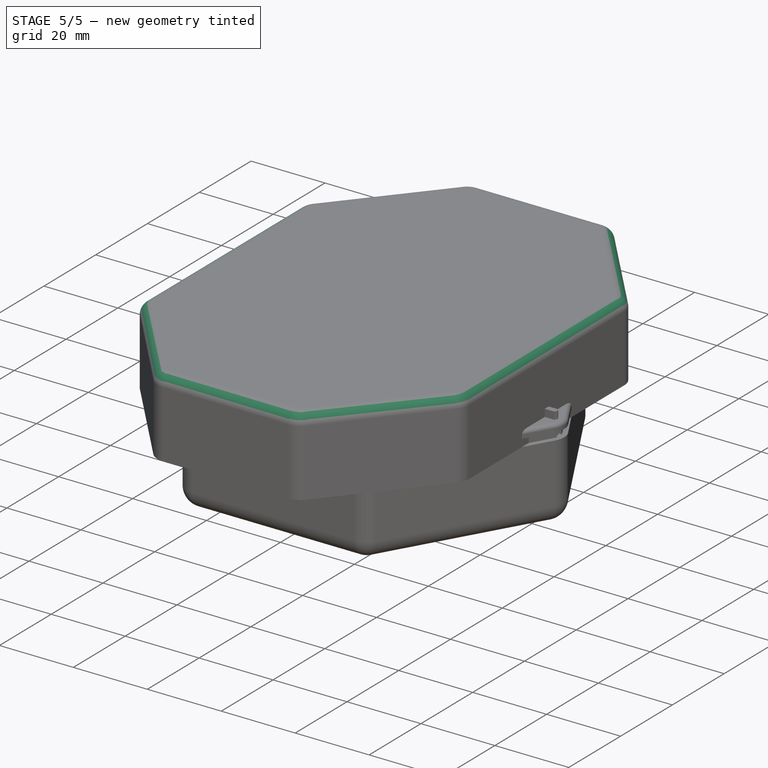
[diagram: stage 5 of 5 — iso view after this stage's code; geometry added in this stage tinted green]
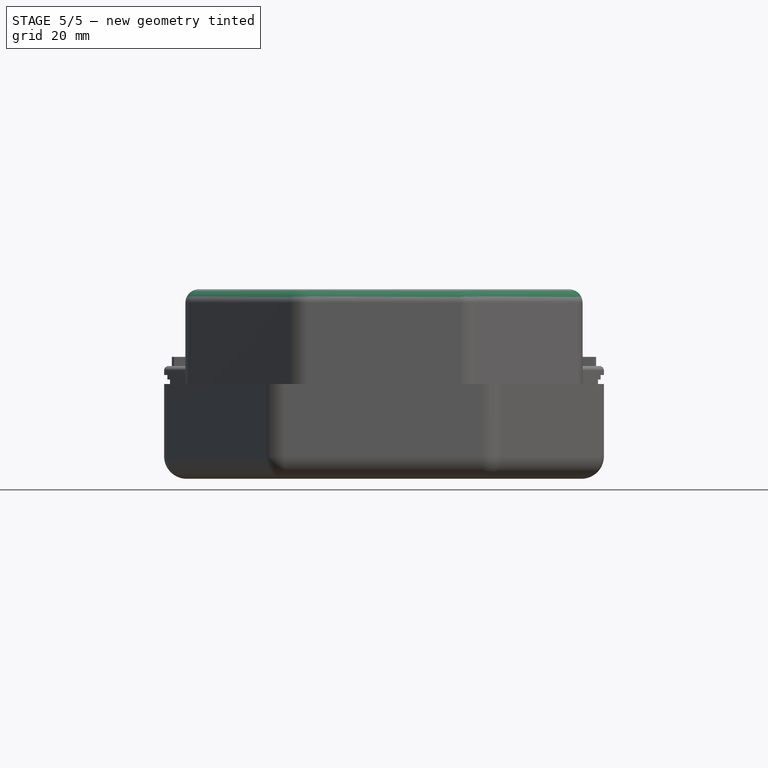
[diagram: stage 5 of 5 — front view after this stage's code; geometry added in this stage tinted green]
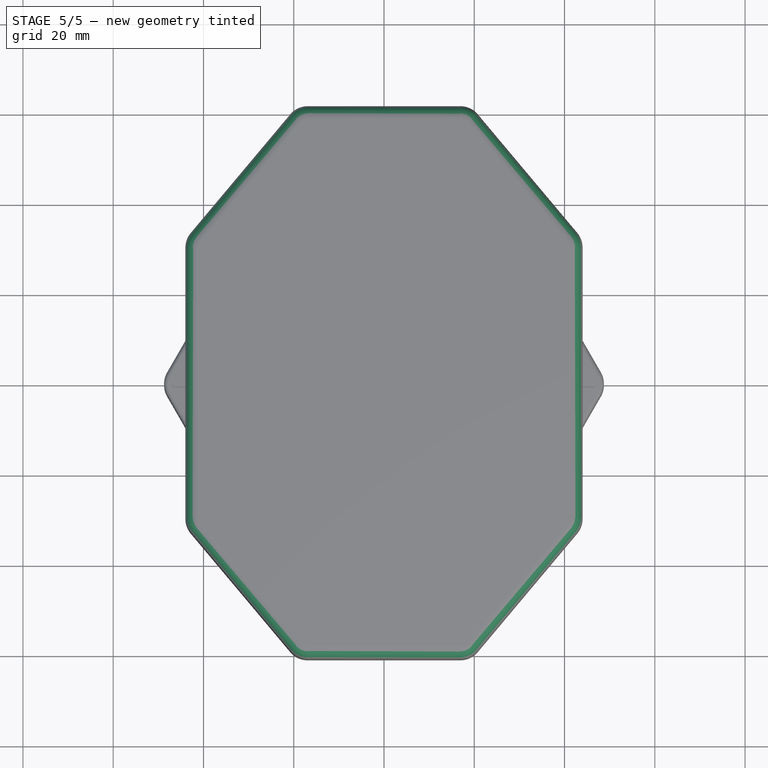
[diagram: stage 5 of 5 — top view after this stage's code; geometry added in this stage tinted green]
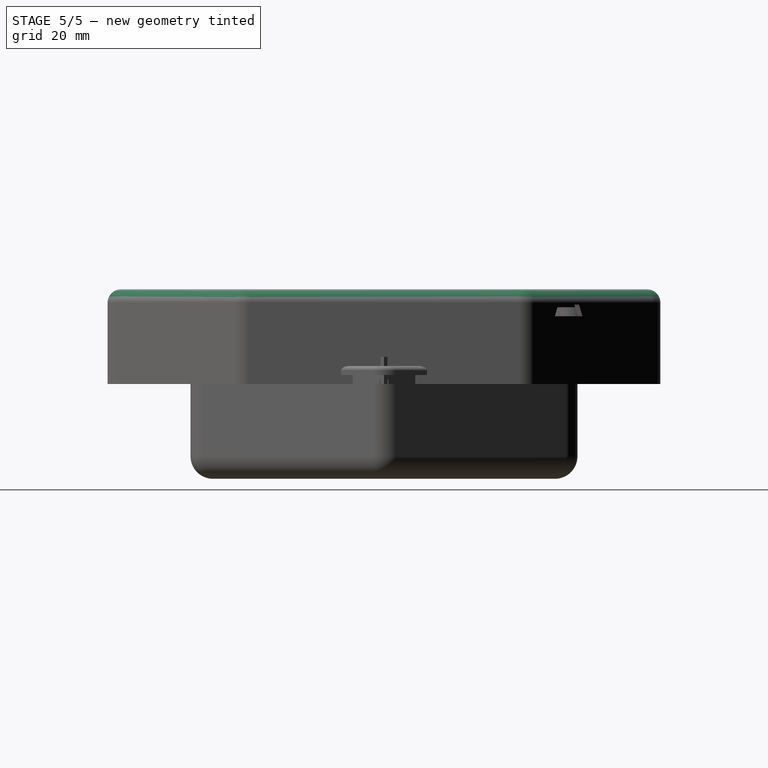
[diagram: stage 5 of 5 — right view after this stage's code; geometry added in this stage tinted green]
FEATURE [Sketcher::SketchObject] Sketch
  Placement = pos=(0,0,0) rot=(1,0,0;3.14159rad)
  expr: Constraints[17] = <<v>>.slide_mount_v_spacing
  expr: Constraints[22] = <<v>>.slide_mount_v_spacing / 2
  expr: Constraints[15] = <<v>>.slide_mount_h_spacing
  expr: Constraints[16] = <<v>>.slide_mount_h_spacing
  expr: Constraints[0] = <<v>>.slide_mount_radius
  expr: Constraints[21] = <<v>>.slide_mount_h_padding
  expr: Constraints[23] = <<v>>.slide_mount_h_padding / 2
  sketch-geometry (8):
    g0: Circle CenterX=2.875 CenterY=42.205 CenterZ=0 NormalX=0 NormalY=0 NormalZ=1 AngleXU=0 Radius=1.45
    g1: Circle CenterX=17.975 CenterY=42.205 CenterZ=0 NormalX=0 NormalY=0 NormalZ=1 AngleXU=0 Radius=1.45
    g2: Circle CenterX=2.875 CenterY=-42.205 CenterZ=0 NormalX=0 NormalY=0 NormalZ=1 AngleXU=0 Radius=1.45
    g3: Circle CenterX=17.975 CenterY=-42.205 CenterZ=0 NormalX=0 NormalY=0 NormalZ=1 AngleXU=0 Radius=1.45
    g4: Circle CenterX=-2.875 CenterY=42.205 CenterZ=0 NormalX=0 NormalY=0 NormalZ=1 AngleXU=0 Radius=1.45
    g5: Circle CenterX=-17.975 CenterY=42.205 CenterZ=0 NormalX=0 NormalY=0 NormalZ=1 AngleXU=0 Radius=1.45
    g6: Circle CenterX=-17.975 CenterY=-42.205 CenterZ=0 NormalX=0 NormalY=0 NormalZ=1 AngleXU=0 Radius=1.45
    g7: Circle CenterX=-2.875 CenterY=-42.205 CenterZ=0 NormalX=0 NormalY=0 NormalZ=1 AngleXU=0 Radius=1.45
  constraints (24):
    c: Radius(g6) = 1.45
    c: Equal(g6,g7)
    c: Equal(g6,g5)
    c: Equal(g6,g4)
    c: Equal(g6,g0)
    c: Equal(g6,g1)
    c: Equal(g6,g3)
    c: Equal(g6,g2)
    c: Horizontal(g1,g0)
    c: Horizontal(g0,g4)
    c: Horizontal(g4,g5)
    c: Vertical(g1,g3)
    c: Vertical(g2,g0)
    c: Vertical(g4,g7)
    c: Vertical(g5,g6)
    c: DistanceX(g5,g4) = 15.1
    c: DistanceX(g0,g1) = 15.1
    c: DistanceY(g6,g5) = 84.41
    c: Horizontal(g6,g7)
    c: Horizontal(g7,g2)
    c: Horizontal(g2,g3)
    c: DistanceX(g4,g0) = 5.75
    c: DistanceY(g-1,g1) = 42.205
    c: DistanceX(g4,g-1) = 2.875
FEATURE [Sketcher::SketchObject] Sketch001
  MapMode = 5
  Support = -> [XY_Plane]
  expr: Constraints[20] = <<v>>.plate_octagon_angle
  expr: Constraints[29] = <<v>>.plate_height + 2 * <<v>>.plate_lip_width
  expr: Constraints[28] = <<v>>.plate_width + <<v>>.plate_lip_width * 2
  sketch-geometry (11):
    g0: LineSegment StartX=-19.25 StartY=-60.9927 StartZ=0 EndX=19.25 EndY=-60.9927 EndZ=0
    g1: LineSegment StartX=19.25 StartY=-60.9927 StartZ=0 EndX=43.9973 EndY=-31.5 EndZ=0
    g2: LineSegment StartX=43.9973 StartY=-31.5 StartZ=0 EndX=43.9973 EndY=31.5 EndZ=0
    g3: LineSegment StartX=43.9973 StartY=31.5 StartZ=0 EndX=19.25 EndY=60.9927 EndZ=0
    g4: LineSegment StartX=19.25 StartY=60.9927 StartZ=0 EndX=-19.25 EndY=60.9927 EndZ=0
    g5: LineSegment StartX=-19.25 StartY=60.9927 StartZ=0 EndX=-43.9973 EndY=31.5 EndZ=0
    g6: LineSegment StartX=-43.9973 StartY=31.5 StartZ=0 EndX=-43.9973 EndY=-31.5 EndZ=0
    g7: LineSegment StartX=-43.9973 StartY=-31.5 StartZ=0 EndX=-19.25 EndY=-60.9927 EndZ=0
    g8: LineSegment [constr] StartX=-19.25 StartY=60.9927 StartZ=0 EndX=0 EndY=0 EndZ=0
    g9: LineSegment [constr] StartX=0 StartY=0 StartZ=0 EndX=19.25 EndY=-60.9927 EndZ=0
    g10: LineSegment [constr] StartX=0 StartY=0 StartZ=0 EndX=19.25 EndY=60.9927 EndZ=0
  constraints (30):
    c: Coincident(g0,g1)
    c: Coincident(g1,g2)
    c: Coincident(g2,g3)
    c: Coincident(g3,g4)
    c: Coincident(g4,g5)
    c: Coincident(g5,g6)
    c: Coincident(g6,g7)
    c: Coincident(g7,g0)
    c: Equal(g0,g1)
    c: Equal(g0,g7)
    c: Horizontal(g4)
    c: Horizontal(g5,g2)
    c: Vertical(g4,g0)
    c: Vertical(g6)
    c: Vertical(g2)
    c: Coincident(g9,g-1)
    c: Coincident(g9,g8)
    c: Coincident(g8,g4)
    c: Coincident(g9,g0)
    c: Equal(g9,g8)
    c: Angle(g4,g3) = 2.26893
    c: Horizontal(g1,g6)
    c: Horizontal(g0)
    c: Vertical(g0,g3)
    c: Equal(g3,g1)
    c: Coincident(g10,g3)
    c: Coincident(g10,g-1)
    c: Equal(g10,g8)
    c: DistanceX(g4,g4) = 38.5
    c: DistanceY(g2,g2) = 63
FEATURE [PartDesign::Pad] Pad  label="0001 - Pad base"
  AllowMultiFace = false
  Direction = (1,1,1)
  Length = 4
  Length2 = 100
  Profile = -> Sketch001
  Type = 0
  expr: Length = <<v>>.plate_thickness
FEATURE [Spreadsheet::Sheet] Spreadsheet  label="v"
  cells = A1=key lip thickness; B1(key_lip_thickness)=1; A2=key with lip size; B2(key_with_lip_size)=16.25; C2(key_lip_size)==key_with_lip_size - key_size; D2=slide mount verical; E2(slide_mount_v_spacing)=84.41; A3=key size; B3(key_size)=14; D3=slide mount horizontal; E3(slide_mount_h_spacing)=15.1; I3=lipsize; J3(lip_size)==key_with_lip_size - key_size; A4=key spacing; B4(key_spacing)=5; D4=slide mount radius; E4(slide_mount_radius)=1.45; D5=slide mount h padding; E5(slide_mount_h_padding)=5.75; A6=plate thickness; B6(plate_thickness)=4; D6=slide stud height; E6(slide_stud_height)=3; A7=plate width; B7(plate_width)=35.5; D7=slide run length; E7(slide_run_length)=63; A8=plate height; B8(plate_height)=60; D8=slide run width; E8(slide_run_width)=2; G8=led size; H8(led_size)=5.5; A9=plate octagon angle; B9(plate_octagon_angle)=130; D9=slide run h spacing; E9(slide_run_h_spacing)=13.5; G9=led height; H9(led_height)=1; A10=plate lip width; B10(plate_lip_width)=1.5; G10=led plate diameter; H10(led_plate_diameter)=10; A11=plate lip depth; B11(plate_lip_depth)=2; D11=slide to key spacing; E11(slide_to_key_spacing)=5; G11=led plate height; H11(led_plate_height)=1; A12=plate fillet radius; B12(plate_fillet_radius)=5; G12=led plate wall height; H12(led_plate_wall_height)=5; D13=center to center spacing; E13(center_to_center_spacing)==key_size + key_spacing; G13=led plate wall thickness; H13(led_plate_wall_thickness)=2; A14=case fit tolerance; B14(case_fit_tolerance)=0.1; G14=led plate wall slot depth; H14(led_plate_wall_slot_depth)=1; A15=case height; B15(case_height)=21; A16=case pocket depth; B16(case_pocket_depth)=18
FEATURE [Sketcher::SketchObject] Sketch002
  MapMode = 5
  Placement = pos=(0,0,4) rot=(0,0,1;0rad)
  Support = -> [Pad]
  expr: Constraints[9] = <<v>>.slide_run_length / 2
  expr: Constraints[8] = <<v>>.slide_run_length
  expr: Constraints[85] = <<v>>.key_spacing
  expr: Constraints[50] = <<v>>.key_size
  expr: Constraints[97] = <<v>>.slide_to_key_spacing
  expr: Constraints[86] = <<v>>.slide_run_h_spacing / 2
  expr: Constraints[10] = <<v>>.slide_run_width
  expr: Constraints[98] = <<v>>.key_size / 2
  expr: Constraints[71] = <<v>>.slide_run_length / 2
  expr: Constraints[69] = <<v>>.slide_to_key_spacing
  sketch-geometry (36):
    g0: LineSegment StartX=6.75 StartY=31.5 StartZ=0 EndX=8.75 EndY=31.5 EndZ=0
    g1: LineSegment StartX=8.75 StartY=31.5 StartZ=0 EndX=8.75 EndY=-31.5 EndZ=0
    g2: LineSegment StartX=8.75 StartY=-31.5 StartZ=0 EndX=6.75 EndY=-31.5 EndZ=0
    g3: LineSegment StartX=6.75 StartY=-31.5 StartZ=0 EndX=6.75 EndY=31.5 EndZ=0
    g4: LineSegment StartX=17.25 StartY=35.5 StartZ=0 EndX=31.25 EndY=35.5 EndZ=0
    g5: LineSegment StartX=31.25 StartY=35.5 StartZ=0 EndX=31.25 EndY=21.5 EndZ=0
    g6: LineSegment StartX=31.25 StartY=21.5 StartZ=0 EndX=17.25 EndY=21.5 EndZ=0
    g7: LineSegment StartX=17.25 StartY=21.5 StartZ=0 EndX=17.25 EndY=35.5 EndZ=0
    g8: LineSegment StartX=17.25 StartY=16.5 StartZ=0 EndX=31.25 EndY=16.5 EndZ=0
    g9: LineSegment StartX=31.25 StartY=16.5 StartZ=0 EndX=31.25 EndY=2.5 EndZ=0
    g10: LineSegment StartX=31.25 StartY=2.5 StartZ=0 EndX=17.25 EndY=2.5 EndZ=0
    g11: LineSegment StartX=17.25 StartY=2.5 StartZ=0 EndX=17.25 EndY=16.5 EndZ=0
    g12: LineSegment StartX=17.25 StartY=-2.5 StartZ=0 EndX=31.25 EndY=-2.5 EndZ=0
    g13: LineSegment StartX=31.25 StartY=-2.5 StartZ=0 EndX=31.25 EndY=-16.5 EndZ=0
    g14: LineSegment StartX=31.25 StartY=-16.5 StartZ=0 EndX=17.25 EndY=-16.5 EndZ=0
    g15: LineSegment StartX=17.25 StartY=-16.5 StartZ=0 EndX=17.25 EndY=-2.5 EndZ=0
    g16: LineSegment StartX=17.25 StartY=-21.5 StartZ=0 EndX=31.25 EndY=-21.5 EndZ=0
    g17: LineSegment StartX=31.25 StartY=-21.5 StartZ=0 EndX=31.25 EndY=-35.5 EndZ=0
    g18: LineSegment StartX=31.25 StartY=-35.5 StartZ=0 EndX=17.25 EndY=-35.5 EndZ=0
    g19: LineSegment StartX=17.25 StartY=-35.5 StartZ=0 EndX=17.25 EndY=-21.5 EndZ=0
    g20: LineSegment [constr] StartX=3.25 StartY=25.2082 StartZ=0 EndX=12.25 EndY=25.2082 EndZ=0
    g21: LineSegment [constr] StartX=12.25 StartY=25.2082 StartZ=0 EndX=12.25 EndY=3.20818 EndZ=0
    g22: LineSegment [constr] StartX=12.25 StartY=3.20818 StartZ=0 EndX=3.25 EndY=3.20818 EndZ=0
    g23: LineSegment [constr] StartX=3.25 StartY=3.20818 StartZ=0 EndX=3.25 EndY=25.2082 EndZ=0
    g24: LineSegment [constr] StartX=6.75 StartY=31.5 StartZ=0 EndX=3.25 EndY=25.2082 EndZ=0
    g25: LineSegment [constr] StartX=8.75 StartY=31.5 StartZ=0 EndX=12.25 EndY=25.2082 EndZ=0
    g26: GeomPoint X=8.75 Y=-4e-16 Z=0
    g27: LineSegment [constr] StartX=17.25 StartY=2.5 StartZ=0 EndX=8.75 EndY=-4e-16 EndZ=0
    g28: LineSegment [constr] StartX=8.75 StartY=-4e-16 StartZ=0 EndX=17.25 EndY=-2.5 EndZ=0
    g29: LineSegment [constr] StartX=17.25 StartY=21.5 StartZ=0 EndX=17.25 EndY=16.5 EndZ=0
    g30: LineSegment [constr] StartX=17.25 StartY=2.5 StartZ=0 EndX=17.25 EndY=-2.5 EndZ=0
    g31: LineSegment [constr] StartX=17.25 StartY=-16.5 StartZ=0 EndX=17.25 EndY=-21.5 EndZ=0
    g32: LineSegment StartX=-7 StartY=-36.5 StartZ=0 EndX=7 EndY=-36.5 EndZ=0
    g33: LineSegment StartX=7 StartY=-36.5 StartZ=0 EndX=7 EndY=-50.5 EndZ=0
    g34: LineSegment StartX=7 StartY=-50.5 StartZ=0 EndX=-7 EndY=-50.5 EndZ=0
    g35: LineSegment StartX=-7 StartY=-50.5 StartZ=0 EndX=-7 EndY=-36.5 EndZ=0
  constraints (99):
    c: Coincident(g0,g1)
    c: Coincident(g1,g2)
    c: Coincident(g2,g3)
    c: Coincident(g3,g0)
    c: Horizontal(g0)
    c: Horizontal(g2)
    c: Vertical(g1)
    c: Vertical(g3)
    c: DistanceY(g3,g3) = 63
    c: DistanceY(g-1,g0) = 31.5
    c: DistanceX(g0,g0) = 2
    c: Coincident(g4,g5)
    c: Coincident(g5,g6)
    c: Coincident(g6,g7)
    c: Coincident(g7,g4)
    c: Horizontal(g4)
    c: Horizontal(g6)
    c: Vertical(g5)
    c: Vertical(g7)
    c: Coincident(g8,g9)
    c: Coincident(g9,g10)
    c: Coincident(g10,g11)
    c: Coincident(g11,g8)
    c: Horizontal(g8)
    c: Horizontal(g10)
    c: Vertical(g9)
    c: Vertical(g11)
    c: Coincident(g12,g13)
    c: Coincident(g13,g14)
    c: Coincident(g14,g15)
    c: Coincident(g15,g12)
    c: Horizontal(g12)
    c: Horizontal(g14)
    c: Vertical(g13)
    c: Vertical(g15)
    c: Coincident(g16,g17)
    c: Coincident(g17,g18)
    c: Coincident(g18,g19)
    c: Coincident(g19,g16)
    c: Horizontal(g16)
    c: Horizontal(g18)
    c: Vertical(g17)
    c: Vertical(g19)
    c: Equal(g9,g8)
    c: Equal(g8,g5)
    c: Equal(g5,g4)
    c: Equal(g4,g12)
    c: Equal(g12,g13)
    c: Equal(g13,g16)
    c: Equal(g16,g17)
    c: DistanceX(g4,g4) = 14
    c: Vertical(g6,g8)
    c: Vertical(g10,g12)
    c: Vertical(g14,g16)
    c: Coincident(g20,g21)
    c: Coincident(g21,g22)
    c: Coincident(g22,g23)
    c: Coincident(g23,g20)
    c: Horizontal(g20)
    c: Horizontal(g22)
    c: Vertical(g21)
    c: Vertical(g23)
    c: DistanceX(g20,g20) = 9
    c: DistanceY(g21,g21) = 22
    c: Coincident(g24,g0)
    c: Coincident(g24,g20)
    c: Coincident(g25,g0)
    c: Coincident(g25,g20)
    c: Equal(g24,g25)
    c: DistanceX(g20,g4) = 5
    c: PointOnObject(g26,g1)
    c: DistanceY(g26,g0) = 31.5
    c: Coincident(g27,g10)
    c: Coincident(g27,g26)
    c: Coincident(g28,g26)
    c: Coincident(g28,g12)
    c: Equal(g27,g28)
    c: Coincident(g29,g6)
    c: Coincident(g29,g8)
    c: Coincident(g30,g10)
    c: Coincident(g30,g12)
    c: Coincident(g31,g14)
    c: Coincident(g31,g16)
    c: Equal(g31,g30)
    c: Equal(g30,g29)
    c: DistanceY(g29,g29) = 5
    c: DistanceX(g-1,g2) = 6.75
    c: Coincident(g32,g33)
    c: Coincident(g33,g34)
    c: Coincident(g34,g35)
    c: Coincident(g35,g32)
    c: Horizontal(g32)
    c: Horizontal(g34)
    c: Vertical(g33)
    c: Vertical(g35)
    c: Equal(g32,g33)
    c: Equal(g33,g18)
    c: DistanceY(g32,g1) = 5
    c: DistanceX(g-1,g32) = 7
FEATURE [PartDesign::Pocket] Pocket  label="0002 - Cut slides and keys (half)"
  AllowMultiFace = false
  BaseFeature = -> Pad
  Length = 5
  Length2 = 100
  Profile = -> Sketch002
  Type = 1
FEATURE [PartDesign::Mirrored] Mirrored  label="0003 - Mirror slides and keys"
  BaseFeature = -> Pocket
  MirrorPlane = -> Sketch002 [V_Axis]
  Originals = -> [Pocket]
FEATURE [Sketcher::SketchObject] Sketch003
  MapMode = 5
  Placement = pos=(0,0,4) rot=(0,0,1;0rad)
  Support = -> [Mirrored]
  expr: Constraints[59] = <<v>>.plate_lip_width
  expr: Constraints[58] = <<v>>.plate_lip_width
  expr: Constraints[20] = <<v>>.plate_width
  expr: Constraints[14] = <<v>>.plate_height
  expr: Constraints[13] = <<v>>.plate_octagon_angle
  sketch-geometry (22):
    g0: LineSegment StartX=17.75 StartY=-57.1946 StartZ=0 EndX=40.569 EndY=-30 EndZ=0
    g1: LineSegment StartX=40.569 StartY=-30 StartZ=0 EndX=40.569 EndY=30 EndZ=0
    g2: LineSegment StartX=40.569 StartY=30 StartZ=0 EndX=17.75 EndY=57.1946 EndZ=0
    g3: LineSegment StartX=17.75 StartY=57.1946 StartZ=0 EndX=-17.75 EndY=57.1946 EndZ=0
    g4: LineSegment StartX=-17.75 StartY=57.1946 StartZ=0 EndX=-40.569 EndY=30 EndZ=0
    g5: LineSegment StartX=-40.569 StartY=30 StartZ=0 EndX=-40.569 EndY=-30 EndZ=0
    g6: LineSegment StartX=-40.569 StartY=-30 StartZ=0 EndX=-17.75 EndY=-57.1946 EndZ=0
    g7: LineSegment StartX=-17.75 StartY=-57.1946 StartZ=0 EndX=17.75 EndY=-57.1946 EndZ=0
    g8: LineSegment [constr] StartX=-17.75 StartY=57.1946 StartZ=0 EndX=0 EndY=0 EndZ=0
    g9: LineSegment [constr] StartX=0 StartY=0 StartZ=0 EndX=17.75 EndY=57.1946 EndZ=0
    g10: LineSegment [constr] StartX=0 StartY=0 StartZ=0 EndX=17.75 EndY=-57.1946 EndZ=0
    g11: LineSegment StartX=-19.25 StartY=60.9927 StartZ=0 EndX=19.25 EndY=60.9927 EndZ=0
    g12: LineSegment StartX=19.25 StartY=60.9927 StartZ=0 EndX=43.9973 EndY=31.5 EndZ=0
    g13: LineSegment StartX=43.9973 StartY=31.5 StartZ=0 EndX=43.9973 EndY=-31.5 EndZ=0
    g14: LineSegment StartX=43.9973 StartY=-31.5 StartZ=0 EndX=19.25 EndY=-60.9927 EndZ=0
    g15: LineSegment StartX=-19.25 StartY=60.9927 StartZ=0 EndX=-43.9973 EndY=31.5 EndZ=0
    g16: LineSegment StartX=-43.9973 StartY=31.5 StartZ=0 EndX=-43.9973 EndY=-31.5 EndZ=0
    g17: LineSegment StartX=-43.9973 StartY=-31.5 StartZ=0 EndX=-19.25 EndY=-60.9927 EndZ=0
    g18: LineSegment StartX=-19.25 StartY=-60.9927 StartZ=0 EndX=19.25 EndY=-60.9927 EndZ=0
    g19: LineSegment [constr] StartX=0 StartY=0 StartZ=0 EndX=19.25 EndY=60.9927 EndZ=0
    g20: LineSegment [constr] StartX=0 StartY=0 StartZ=0 EndX=-19.25 EndY=60.9927 EndZ=0
    g21: LineSegment [constr] StartX=0 StartY=0 StartZ=0 EndX=19.25 EndY=-60.9927 EndZ=0
  constraints (60):
    c: Coincident(g0,g1)
    c: Coincident(g1,g2)
    c: Coincident(g2,g3)
    c: Coincident(g3,g4)
    c: Coincident(g4,g5)
    c: Coincident(g5,g6)
    c: Coincident(g6,g7)
    c: Coincident(g7,g0)
    c: Horizontal(g3)
    c: Horizontal(g7)
    c: Vertical(g3,g6)
    c: Horizontal(g0,g5)
    c: Vertical(g1)
    c: Angle(g3,g2) = 2.26893
    c: DistanceY(g1,g1) = 60
    c: Equal(g6,g4)
    c: Equal(g4,g2)
    c: Equal(g2,g0)
    c: Equal(g5,g1)
    c: Equal(g3,g7)
    c: DistanceX(g3,g3) = 35.5
    c: Coincident(g10,g-1)
    c: Coincident(g10,g8)
    c: Coincident(g10,g9)
    c: Coincident(g8,g3)
    c: Coincident(g2,g9)
    c: Coincident(g10,g0)
    c: Equal(g10,g9)
    c: Equal(g9,g8)
    c: Equal(g4,g3)
    c: Horizontal(g11)
    c: Vertical(g13)
    c: Coincident(g18,g14)
    c: Coincident(g14,g13)
    c: Coincident(g18,g17)
    c: Coincident(g17,g16)
    c: Coincident(g16,g15)
    c: Coincident(g15,g11)
    c: Coincident(g11,g12)
    c: Coincident(g12,g13)
    c: Parallel(g12,g2)
    c: Parallel(g4,g15)
    c: Parallel(g16,g5)
    c: Parallel(g14,g0)
    c: Parallel(g18,g7)
    c: Equal(g11,g15)
    c: Equal(g15,g12)
    c: Equal(g12,g14)
    c: Equal(g14,g18)
    c: Equal(g18,g17)
    c: Coincident(g21,g19)
    c: Coincident(g21,g20)
    c: Coincident(g20,g11)
    c: Coincident(g19,g11)
    c: Coincident(g21,g14)
    c: Coincident(g19,g-1)
    c: Equal(g21,g19)
    c: Equal(g19,g20)
    c: DistanceX(g2,g11) = 1.5
    c: DistanceY(g1,g12) = 1.5
FEATURE [PartDesign::Pocket] Pocket001  label="0004 - pocket lip"
  AllowMultiFace = false
  BaseFeature = -> Mirrored
  Length = 2
  Length2 = 100
  Profile = -> Sketch003
  Type = 0
  expr: Length = <<v>>.plate_lip_depth
FEATURE [PartDesign::Fillet] Fillet  label="0005 - round over shape"
  Base = -> Pocket001 [Edge4,Edge72,Edge2,Edge56,Edge74,Edge76,Edge75,Edge73]
  BaseFeature = -> Pocket001
  Radius = 5
  SupportTransform = false
  expr: Radius = <<v>>.plate_fillet_radius
FEATURE [PartDesign::Fillet] Fillet001  label="0006 - fillet top edge"
  Base = -> Fillet [Edge14]
  BaseFeature = -> Fillet
  Radius = 1
  SupportTransform = false
FEATURE [Sketcher::SketchObject] Sketch004
  ExternalGeometry = -> [Fillet001]
  MapMode = 5
  Placement = pos=(0,0,0) rot=(1,0,0;3.14159rad)
  Support = -> [Fillet001]
  expr: Constraints[77] = <<v>>.slide_run_length / 2 + <<v>>.slide_to_key_spacing + <<v>>.key_with_lip_size / 2 - <<v>>.lip_size / 2
  expr: Constraints[55] = <<v>>.key_spacing - (<<v>>.key_with_lip_size - <<v>>.key_size)
  expr: Constraints[9] = <<v>>.key_with_lip_size
  expr: Constraints[8] = <<v>>.key_with_lip_size
  sketch-geometry (29):
    g0: LineSegment StartX=16.25 StartY=36.625 StartZ=0 EndX=32.5 EndY=36.625 EndZ=0
    g1: LineSegment StartX=32.5 StartY=36.625 StartZ=0 EndX=32.5 EndY=20.375 EndZ=0
    g2: LineSegment StartX=32.5 StartY=20.375 StartZ=0 EndX=16.25 EndY=20.375 EndZ=0
    g3: LineSegment StartX=16.25 StartY=20.375 StartZ=0 EndX=16.25 EndY=36.625 EndZ=0
    g4: LineSegment StartX=16.25 StartY=17.625 StartZ=0 EndX=32.5 EndY=17.625 EndZ=0
    g5: LineSegment StartX=32.5 StartY=17.625 StartZ=0 EndX=32.5 EndY=1.375 EndZ=0
    g6: LineSegment StartX=32.5 StartY=1.375 StartZ=0 EndX=16.25 EndY=1.375 EndZ=0
    g7: LineSegment StartX=16.25 StartY=1.375 StartZ=0 EndX=16.25 EndY=17.625 EndZ=0
    g8: LineSegment StartX=16.25 StartY=-1.375 StartZ=0 EndX=32.5 EndY=-1.375 EndZ=0
    g9: LineSegment StartX=32.5 StartY=-1.375 StartZ=0 EndX=32.5 EndY=-17.625 EndZ=0
    g10: LineSegment StartX=32.5 StartY=-17.625 StartZ=0 EndX=16.25 EndY=-17.625 EndZ=0
    g11: LineSegment StartX=16.25 StartY=-17.625 StartZ=0 EndX=16.25 EndY=-1.375 EndZ=0
    g12: LineSegment StartX=16.25 StartY=-20.375 StartZ=0 EndX=32.5 EndY=-20.375 EndZ=0
    g13: LineSegment StartX=32.5 StartY=-20.375 StartZ=0 EndX=32.5 EndY=-36.625 EndZ=0
    g14: LineSegment StartX=32.5 StartY=-36.625 StartZ=0 EndX=16.25 EndY=-36.625 EndZ=0
    g15: LineSegment StartX=16.25 StartY=-36.625 StartZ=0 EndX=16.25 EndY=-20.375 EndZ=0
    g16: LineSegment [constr] StartX=16.25 StartY=20.375 StartZ=0 EndX=16.25 EndY=17.625 EndZ=0
    g17: LineSegment [constr] StartX=16.25 StartY=1.375 StartZ=0 EndX=16.25 EndY=-1.375 EndZ=0
    g18: LineSegment [constr] StartX=16.25 StartY=-17.625 StartZ=0 EndX=16.25 EndY=-20.375 EndZ=0
    g19: LineSegment [constr] StartX=16.25 StartY=1.375 StartZ=0 EndX=0 EndY=0 EndZ=0
    g20: LineSegment [constr] StartX=16.25 StartY=-1.375 StartZ=0 EndX=0 EndY=0 EndZ=0
    g21: LineSegment StartX=-8.125 StartY=51.625 StartZ=0 EndX=8.125 EndY=51.625 EndZ=0
    g22: LineSegment StartX=8.125 StartY=51.625 StartZ=0 EndX=8.125 EndY=35.375 EndZ=0
    g23: LineSegment StartX=8.125 StartY=35.375 StartZ=0 EndX=-8.125 EndY=35.375 EndZ=0
    g24: LineSegment StartX=-8.125 StartY=35.375 StartZ=0 EndX=-8.125 EndY=51.625 EndZ=0
    g25: GeomPoint X=0 Y=43.5 Z=0
    g26: LineSegment [constr] StartX=0 StartY=43.5 StartZ=0 EndX=8.125 EndY=51.625 EndZ=0
    g27: LineSegment [constr] StartX=-8.125 StartY=51.625 StartZ=0 EndX=0 EndY=43.5 EndZ=0
    g28: LineSegment [constr] StartX=0 StartY=43.5 StartZ=0 EndX=-8.125 EndY=35.375 EndZ=0
  constraints (78):
    c: Coincident(g0,g1)
    c: Coincident(g1,g2)
    c: Coincident(g2,g3)
    c: Coincident(g3,g0)
    c: Horizontal(g0)
    c: Horizontal(g2)
    c: Vertical(g1)
    c: Vertical(g3)
    c: DistanceX(g0,g0) = 16.25
    c: DistanceY(g3,g3) = 16.25
    c: Coincident(g4,g5)
    c: Coincident(g5,g6)
    c: Coincident(g6,g7)
    c: Coincident(g7,g4)
    c: Horizontal(g4)
    c: Horizontal(g6)
    c: Vertical(g5)
    c: Vertical(g7)
    c: Coincident(g8,g9)
    c: Coincident(g9,g10)
    c: Coincident(g10,g11)
    c: Coincident(g11,g8)
    c: Horizontal(g8)
    c: Horizontal(g10)
    c: Vertical(g9)
    c: Vertical(g11)
    c: Coincident(g12,g13)
    c: Coincident(g13,g14)
    c: Coincident(g14,g15)
    c: Coincident(g15,g12)
    c: Horizontal(g12)
    c: Horizontal(g14)
    c: Vertical(g13)
    c: Vertical(g15)
    c: Equal(g4,g7)
    c: Equal(g7,g8)
    c: Equal(g8,g11)
    c: Equal(g11,g12)
    c: Equal(g12,g15)
    c: Equal(g15,g3)
    c: Vertical(g8,g4)
    c: Vertical(g4,g0)
    c: Vertical(g0,g12)
    c: Coincident(g18,g12)
    c: Coincident(g18,g10)
    c: Coincident(g17,g8)
    c: Coincident(g17,g6)
    c: Coincident(g16,g4)
    c: Coincident(g16,g2)
    c: Equal(g16,g17)
    c: Equal(g17,g18)
    c: Coincident(g19,g-1)
    c: Coincident(g20,g-1)
    c: Coincident(g19,g6)
    c: Coincident(g20,g8)
    c: DistanceY(g17,g17) = 2.75
    c: Equal(g20,g19)
    c: DistanceX(g-3,g0) = 7.5
    c: Coincident(g21,g22)
    c: Coincident(g22,g23)
    c: Coincident(g23,g24)
    c: Coincident(g24,g21)
    c: Horizontal(g21)
    c: Horizontal(g23)
    c: Vertical(g22)
    c: Vertical(g24)
    c: Equal(g22,g21)
    c: Equal(g21,g0)
    c: PointOnObject(g25,g-2)
    c: Coincident(g28,g25)
    c: Coincident(g28,g27)
    c: Coincident(g28,g26)
    c: Coincident(g26,g21)
    c: Coincident(g27,g21)
    c: Coincident(g28,g23)
    c: Equal(g27,g28)
    c: Equal(g28,g26)
    c: DistanceY(g-1,g25) = 43.5
FEATURE [PartDesign::Pocket] Pocket002  label="0007 - sink buttons (half)"
  AllowMultiFace = false
  BaseFeature = -> Fillet001
  Length = 1
  Length2 = 100
  Profile = -> Sketch004
  Type = 0
  expr: Length = <<v>>.key_lip_thickness
FEATURE [PartDesign::Mirrored] Mirrored001  label="0008 - sink buttons (mirror)"
  BaseFeature = -> Pocket002
  MirrorPlane = -> Sketch004 [V_Axis]
  Originals = -> [Pocket002]
FEATURE [PartDesign::Fillet] Fillet003  label="0008 - fillet bottom"
  Base = -> Pocket005 [Face34]
  BaseFeature = -> Pocket005
  Radius = 3
  SupportTransform = false
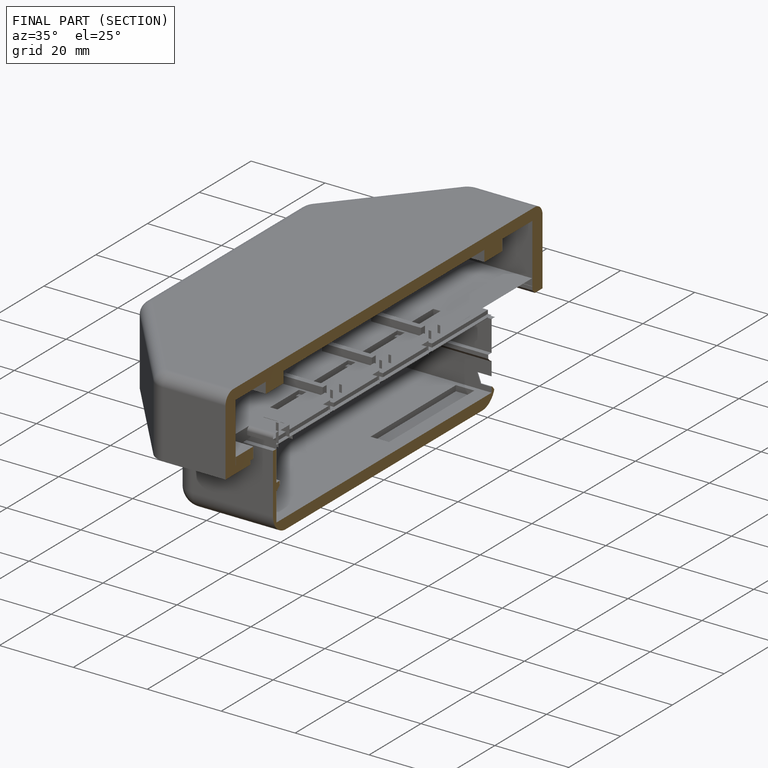
[diagram: finished part — half-section view (interior)]
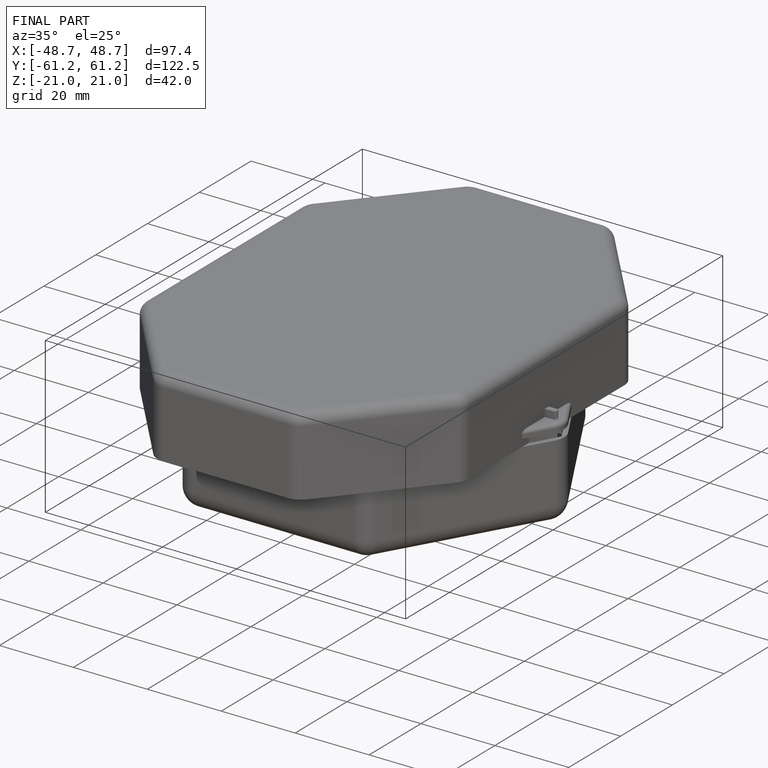
[diagram: finished part — iso view with bounding-box wireframe]
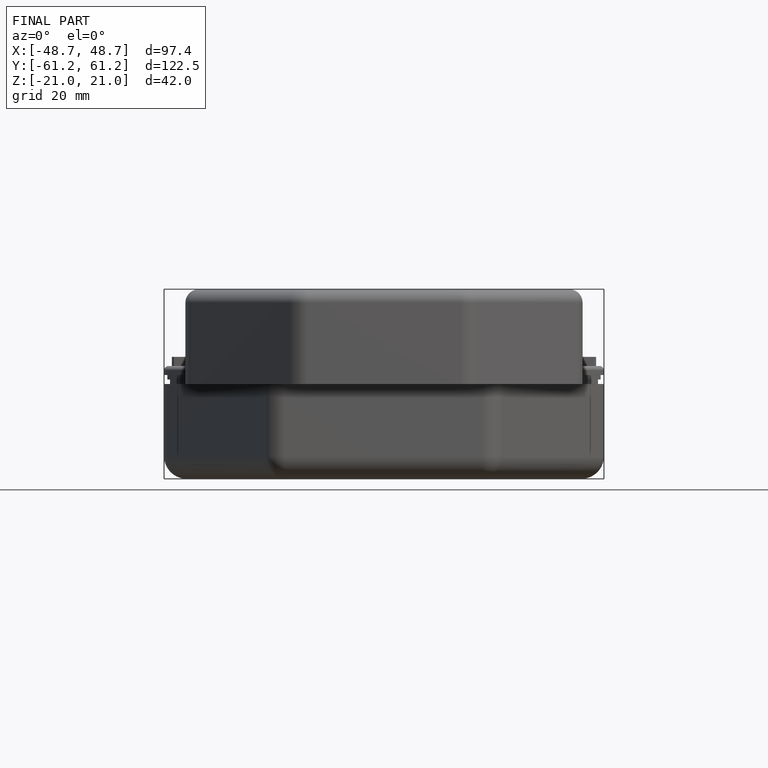
[diagram: finished part — front view with bounding-box wireframe]
